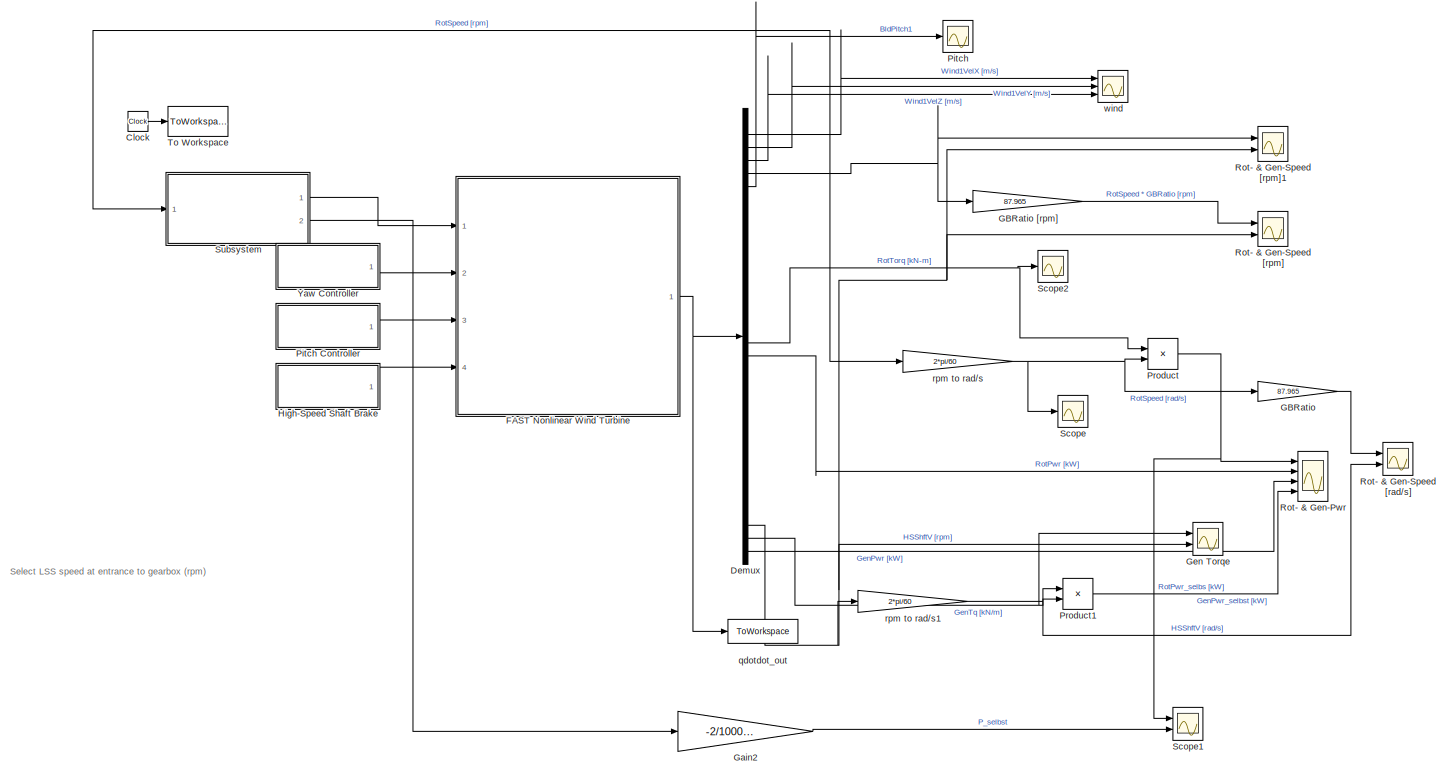
[diagram: root canvas - part 1/1, most of the canvas]
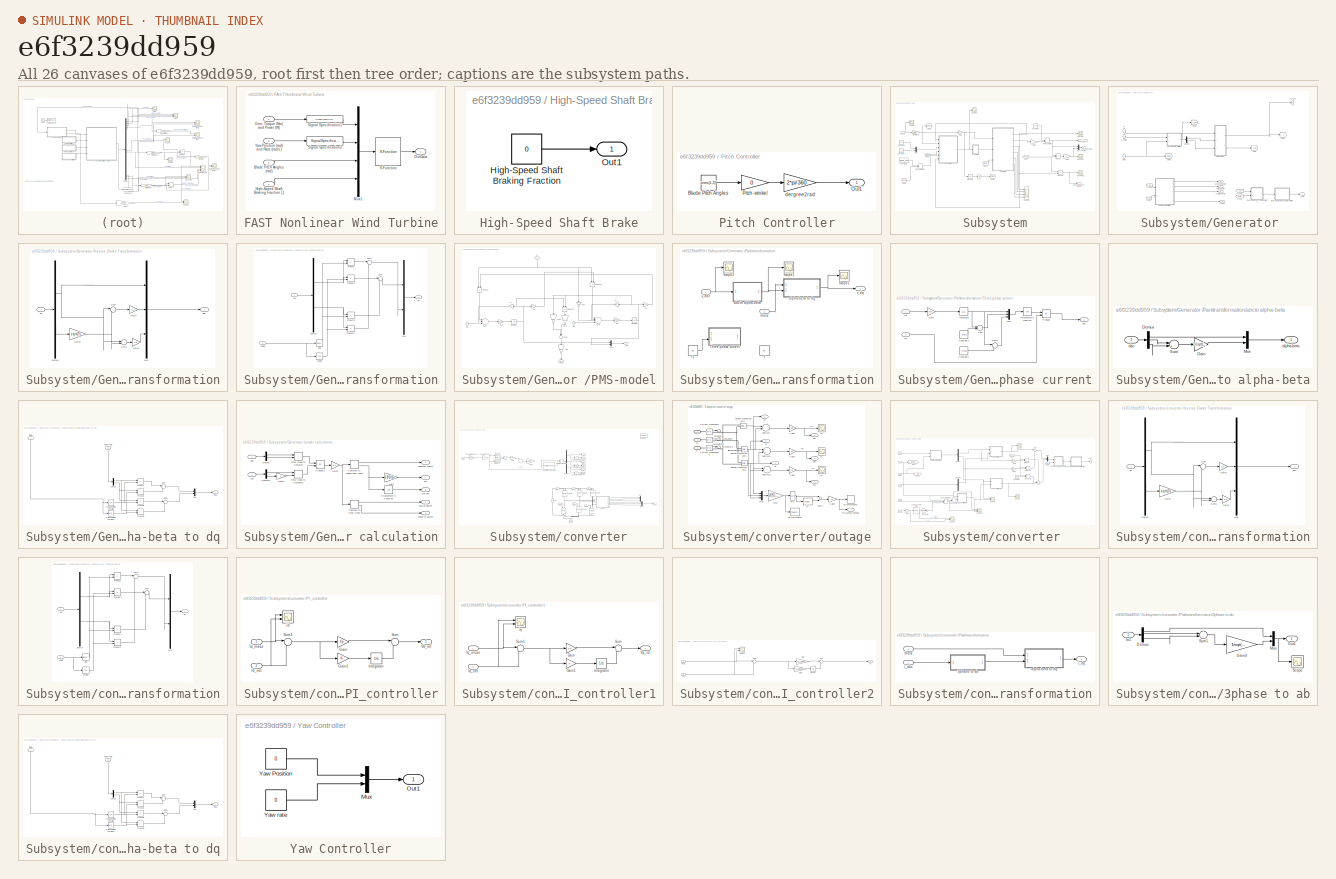
[diagram: thumbnail index - all 26 canvases of the model, root first then tree order]
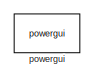
[diagram: Subsystem/converter - part 1/3, top right region]
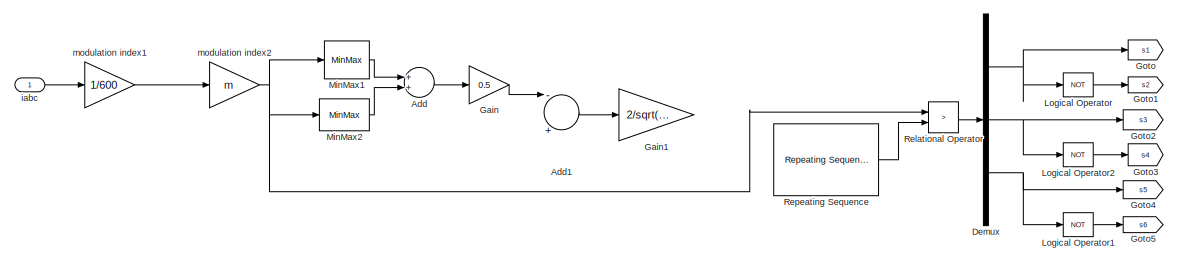
[diagram: Subsystem/converter - part 2/3, middle left region]
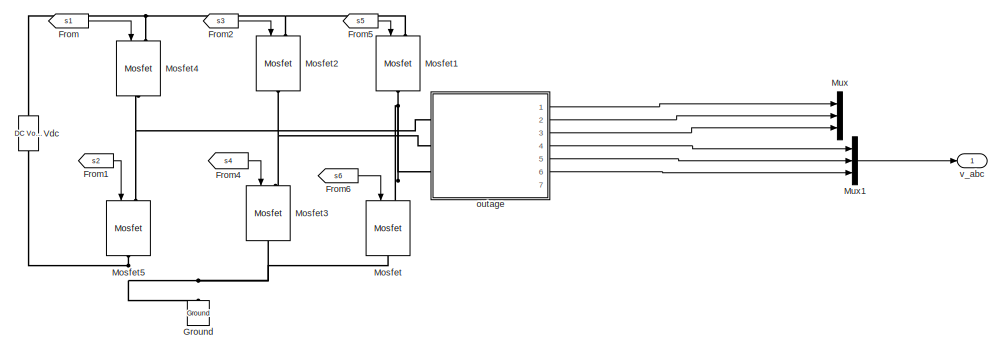
[diagram: Subsystem/converter - part 3/3, bottom right region]
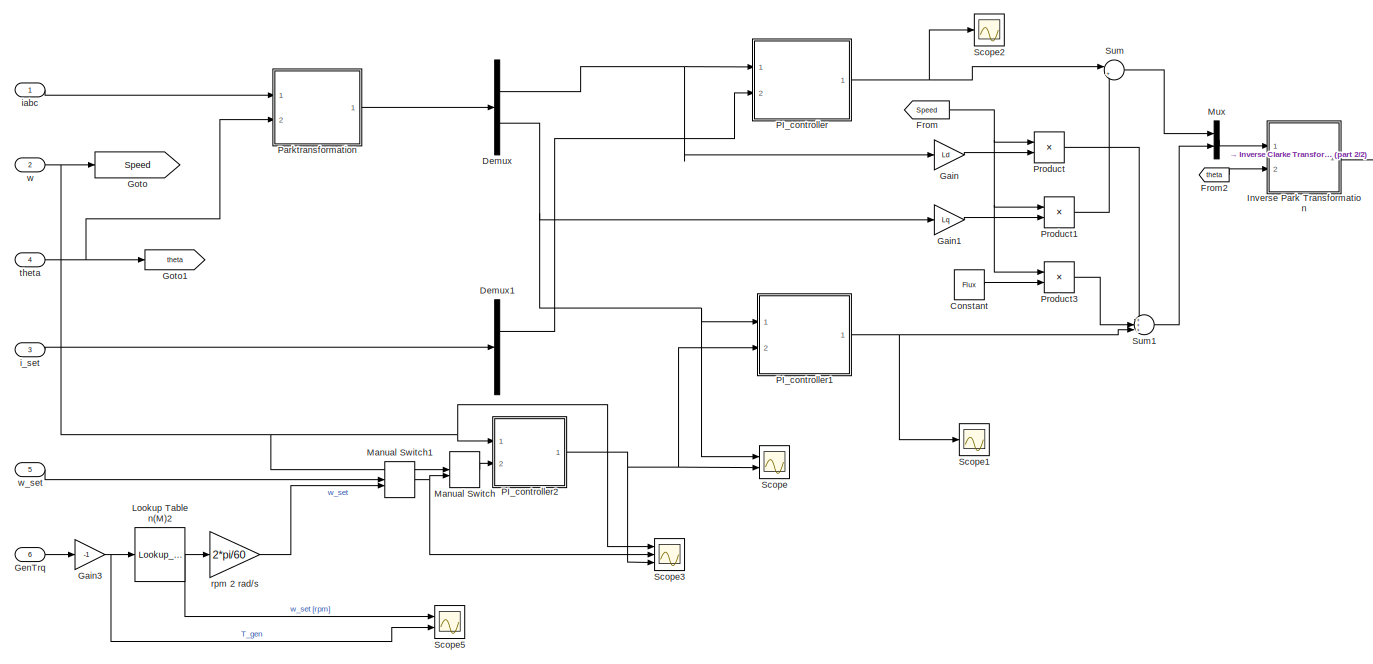
[diagram: Subsystem/converter  - part 1/2, most of the canvas]
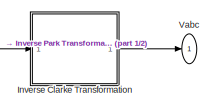
[diagram: Subsystem/converter  - part 2/2, top right region]
MODEL slx_e6f3239dd959
KIND model
CONFIG AbsTol = auto
CONFIG EnableMultiTasking = off
CONFIG FixedStep = 0.0001
CONFIG MaxStep = auto
CONFIG MinStep = auto
CONFIG RelTol = 1e-3
CONFIG SampleTimeConstraint = Unconstrained
CONFIG Solver = ode4
CONFIG SolverName = ode4
CONFIG StartTime = 0.0
CONFIG StopTime = 100
BLOCK [Clock] Clock
BLOCK [Demux] Demux
  DisplayOption = bar
  Outputs = 34
  Ports = [1, 34]
BLOCK [SubSystem] FAST Nonlinear Wind Turbine
  Ports = [4, 1]
  RequestExecContextInheritance = off
  Variant = off
BLOCK [Inport] FAST Nonlinear Wind Turbine/Blade Pitch Angles (rad)
  IconDisplay = Port number
  Port = 3
BLOCK [Inport] FAST Nonlinear Wind Turbine/Gen. Torque (Nm) and Power (W)
  IconDisplay = Port number
BLOCK [Inport] FAST Nonlinear Wind Turbine/High-Speed Shaft Braking Fraction (-)
  IconDisplay = Port number
  Port = 4
BLOCK [Mux] FAST Nonlinear Wind Turbine/Mux1
  DisplayOption = bar
  Ports = [4, 1]
BLOCK [Outport] FAST Nonlinear Wind Turbine/OutData
  IconDisplay = Port number
BLOCK [S-Function] FAST Nonlinear Wind Turbine/S-Function
  EnableBusSupport = off
  FunctionName = FAST_SFunc
  Parameters = FAST_InputFileName, TMax, 0
  Ports = [1, 1]
  SFcnIsStateOwnerBlock = off
  SFunctionDeploymentMode = off
BLOCK [SignalSpecification] FAST Nonlinear Wind Turbine/Signal Specification1
  Dimensions = 2
  OutDataTypeStr = double
  SignalType = real
BLOCK [SignalSpecification] FAST Nonlinear Wind Turbine/Signal Specification2
  Dimensions = 2
  OutDataTypeStr = double
  SignalType = real
BLOCK [Inport] FAST Nonlinear Wind Turbine/Yaw Position (rad) and Rate (rad//s)
  IconDisplay = Port number
  Port = 2
BLOCK [Gain] GBRatio
  Gain = 87.965
  OutDataTypeStr = Inherit: Inherit via internal rule
  ParamDataTypeStr = Inherit: Inherit via internal rule
  SaturateOnIntegerOverflow = off
BLOCK [Gain] GBRatio [rpm]
  Gain = 87.965
  OutDataTypeStr = Inherit: Inherit via internal rule
  ParamDataTypeStr = Inherit: Inherit via internal rule
  SaturateOnIntegerOverflow = off
BLOCK [Gain] Gain2
  Gain = -2/100000
  OutDataTypeStr = Inherit: Inherit via internal rule
  ParamDataTypeStr = Inherit: Inherit via internal rule
  SaturateOnIntegerOverflow = off
BLOCK [Scope] Gen Torqe
  NumInputPorts = 2
  Ports = [2]
  ScopeSpecificationString = Simulink.scopes.TimeScopeBlockCfg('CurrentConfiguration', extmgr.ConfigurationSet(extmgr.Configuration('Core','General UI',true),extmgr.Configuration('Core','Source UI',true),extmgr.Configuration('Sources','WiredSimulink',true,'DataLoggingVariableName','ScopeData1'),extmgr.Configuration('Visuals','Time Domain',true,'SerializedDisplays',{struct('MinYLimReal','175.29635','MaxYLimReal','1290.81856','...<+2465ch>
BLOCK [SubSystem] High-Speed Shaft Brake
  Ports = [0, 1]
  RequestExecContextInheritance = off
  Variant = off
BLOCK [Constant] High-Speed Shaft Brake/High-Speed Shaft Braking Fraction
  Value = 0
BLOCK [Outport] High-Speed Shaft Brake/Out1
  IconDisplay = Port number
BLOCK [Scope] Pitch
  NumInputPorts = 1
  Ports = [1]
  ScopeSpecificationString = Simulink.scopes.TimeScopeBlockCfg('CurrentConfiguration', extmgr.ConfigurationSet(extmgr.Configuration('Core','General UI',true),extmgr.Configuration('Core','Source UI',true),extmgr.Configuration('Sources','WiredSimulink',true,'DataLoggingVariableName','ScopeData2'),extmgr.Configuration('Visuals','Time Domain',true,'SerializedDisplays',{struct('MinYLimReal','-0.06791','MaxYLimReal','11.59004','YLa...<+1787ch>
BLOCK [SubSystem] Pitch Controller
  Ports = [0, 1]
  RequestExecContextInheritance = off
  Variant = off
BLOCK [Constant] Pitch Controller/Blade Pitch Angles
  Value = ones(1,3)'
BLOCK [Outport] Pitch Controller/Out1
  IconDisplay = Port number
BLOCK [Gain] Pitch Controller/Pitch-winkel
  Gain = 0
  OutDataTypeStr = Inherit: Inherit via internal rule
  ParamDataTypeStr = Inherit: Inherit via internal rule
  SaturateOnIntegerOverflow = off
BLOCK [Gain] Pitch Controller/dergree2rad
  Gain = 2*pi/360
  OutDataTypeStr = Inherit: Inherit via internal rule
  ParamDataTypeStr = Inherit: Inherit via internal rule
  SaturateOnIntegerOverflow = off
BLOCK [Product] Product
  InputSameDT = off
  OutDataTypeStr = Inherit: Inherit via internal rule
  Ports = [2, 1]
  RndMeth = Floor
  SaturateOnIntegerOverflow = off
BLOCK [Product] Product1
  InputSameDT = off
  OutDataTypeStr = Inherit: Inherit via internal rule
  Ports = [2, 1]
  RndMeth = Floor
  SaturateOnIntegerOverflow = off
BLOCK [Scope] Rot- & Gen-Pwr
  NumInputPorts = 4
  Ports = [4]
  ScopeSpecificationString = Simulink.scopes.TimeScopeBlockCfg('CurrentConfiguration', extmgr.ConfigurationSet(extmgr.Configuration('Core','General UI',true),extmgr.Configuration('Core','Source UI',true),extmgr.Configuration('Sources','WiredSimulink',true,'DataLoggingVariableName','ScopeData1'),extmgr.Configuration('Visuals','Time Domain',true,'SerializedDisplays',{struct('MinYLimReal','-11998.78751','MaxYLimReal','12263.4527...<+1913ch>
BLOCK [Scope] Rot- & Gen-Speed [rad//s]
  NumInputPorts = 2
  Ports = [2]
  ScopeSpecificationString = Simulink.scopes.TimeScopeBlockCfg('CurrentConfiguration', extmgr.ConfigurationSet(extmgr.Configuration('Core','General UI',true),extmgr.Configuration('Core','Source UI',true),extmgr.Configuration('Sources','WiredSimulink',true,'DataLoggingVariableName','ScopeData1'),extmgr.Configuration('Visuals','Time Domain',true,'SerializedDisplays',{struct('MinYLimReal','176.71018','MaxYLimReal','211.07262','Y...<+1472ch>
BLOCK [Scope] Rot- & Gen-Speed [rpm]
  NumInputPorts = 2
  Ports = [2]
  ScopeSpecificationString = Simulink.scopes.TimeScopeBlockCfg('CurrentConfiguration', extmgr.ConfigurationSet(extmgr.Configuration('Core','General UI',true),extmgr.Configuration('Core','Source UI',true),extmgr.Configuration('Sources','WiredSimulink',true,'DataLoggingVariableName','ScopeData1'),extmgr.Configuration('Visuals','Time Domain',true,'SerializedDisplays',{struct('MinYLimReal','1687.45789','MaxYLimReal','2015.59509',...<+1545ch>
BLOCK [Scope] Rot- & Gen-Speed [rpm]1
  NumInputPorts = 2
  Ports = [2]
  ScopeSpecificationString = Simulink.scopes.TimeScopeBlockCfg('CurrentConfiguration', extmgr.ConfigurationSet(extmgr.Configuration('Core','General UI',true),extmgr.Configuration('Core','Source UI',true),extmgr.Configuration('Sources','WiredSimulink',true,'DataLoggingVariableName','ScopeData3'),extmgr.Configuration('Visuals','Time Domain',true,'SerializedDisplays',{struct('MinYLimReal','-204.38964','MaxYLimReal','2034.73429',...<+1854ch>
BLOCK [Scope] Scope
  NumInputPorts = 1
  Ports = [1]
  ScopeSpecificationString = Simulink.scopes.TimeScopeBlockCfg('CurrentConfiguration', extmgr.ConfigurationSet(extmgr.Configuration('Core','General UI',true),extmgr.Configuration('Core','Source UI',true),extmgr.Configuration('Sources','WiredSimulink',true,'DataLoggingVariableName','ScopeData1'),extmgr.Configuration('Visuals','Time Domain',true,'SerializedDisplays',{struct('MinYLimReal','2.02033','MaxYLimReal','2.39822','YLabe...<+1729ch>
BLOCK [Scope] Scope1
  NumInputPorts = 2
  Ports = [2]
  ScopeSpecificationString = Simulink.scopes.TimeScopeBlockCfg('CurrentConfiguration', extmgr.ConfigurationSet(extmgr.Configuration('Core','General UI',true),extmgr.Configuration('Core','Source UI',true),extmgr.Configuration('Sources','WiredSimulink',true,'DataLoggingVariableName','ScopeData5'),extmgr.Configuration('Visuals','Time Domain',true,'SerializedDisplays',{struct('MinYLimReal','-337.22726','MaxYLimReal','3035.04531',...<+1790ch>
BLOCK [Scope] Scope2
  NumInputPorts = 1
  Ports = [1]
  ScopeSpecificationString = Simulink.scopes.TimeScopeBlockCfg('CurrentConfiguration', extmgr.ConfigurationSet(extmgr.Configuration('Core','General UI',true),extmgr.Configuration('Core','Source UI',true),extmgr.Configuration('Sources','WiredSimulink',true,'DataLoggingVariableName','ScopeData2'),extmgr.Configuration('Visuals','Time Domain',true,'SerializedDisplays',{struct('MinYLimReal','-412498.87918','MaxYLimReal','45986.162...<+1784ch>
BLOCK [SubSystem] Subsystem
  Ports = [1, 2]
  RequestExecContextInheritance = off
  Variant = off
BLOCK [Constant] Subsystem/Constant
  Value = 8377
  VectorParams1D = off
BLOCK [Constant] Subsystem/Constant1
  Value = Speed_set
BLOCK [Constant] Subsystem/Constant3
  Value = Id_set
BLOCK [Constant] Subsystem/Constant4
  Value = Iq_set
BLOCK [From] Subsystem/From
  GotoTag = Speed
BLOCK [From] Subsystem/From1
  GotoTag = theta
BLOCK [From] Subsystem/From2
  GotoTag = theta
BLOCK [Gain] Subsystem/Gain
  Gain = p
  OutDataTypeStr = Inherit: Inherit via internal rule
  ParamDataTypeStr = Inherit: Inherit via internal rule
  SaturateOnIntegerOverflow = off
BLOCK [Gain] Subsystem/Gain1
  Gain = -1
  OutDataTypeStr = Inherit: Inherit via internal rule
  ParamDataTypeStr = Inherit: Inherit via internal rule
  SaturateOnIntegerOverflow = off
BLOCK [Gain] Subsystem/Gain2
  OutDataTypeStr = Inherit: Inherit via internal rule
  ParamDataTypeStr = Inherit: Inherit via internal rule
  SaturateOnIntegerOverflow = off
BLOCK [Outport] Subsystem/Gen Torque, Gen Power
  IconDisplay = Port number
BLOCK [Outport] Subsystem/Gen Torque, Gen Power1
  IconDisplay = Port number
  Port = 2
BLOCK [Scope] Subsystem/GenPowr
  NumInputPorts = 1
  Ports = [1]
  ScopeSpecificationString = Simulink.scopes.TimeScopeBlockCfg('CurrentConfiguration', extmgr.ConfigurationSet(extmgr.Configuration('Core','General UI',true),extmgr.Configuration('Core','Source UI',true),extmgr.Configuration('Sources','WiredSimulink',true,'DataLoggingVariableName','ScopeData1'),extmgr.Configuration('Visuals','Time Domain',true,'SerializedDisplays',{struct('MinYLimReal','1699746.92035','MaxYLimReal','1950506.4...<+1826ch>
BLOCK [Scope] Subsystem/GenPowr1
  NumInputPorts = 1
  Ports = [1]
  ScopeSpecificationString = Simulink.scopes.TimeScopeBlockCfg('CurrentConfiguration', extmgr.ConfigurationSet(extmgr.Configuration('Core','General UI',true),extmgr.Configuration('Core','Source UI',true),extmgr.Configuration('Sources','WiredSimulink',true,'DataLoggingVariableName','ScopeData4'),extmgr.Configuration('Visuals','Time Domain',true,'SerializedDisplays',{struct('MinYLimReal','-17221.29065','MaxYLimReal','2142.33384...<+1749ch>
BLOCK [Scope] Subsystem/GenTorq
  NumInputPorts = 1
  Ports = [1]
  ScopeSpecificationString = Simulink.scopes.TimeScopeBlockCfg('CurrentConfiguration', extmgr.ConfigurationSet(extmgr.Configuration('Core','General UI',true),extmgr.Configuration('Core','Source UI',true),extmgr.Configuration('Sources','WiredSimulink',true,'DataLoggingVariableName','ScopeData2','DataLoggingSaveFormat','Array','DataLoggingDecimation','1'),extmgr.Configuration('Visuals','Time Domain',true,'SerializedDisplays',{s...<+1847ch>
BLOCK [SubSystem] Subsystem/Generator 
  Ports = [3, 6]
  RequestExecContextInheritance = off
  Variant = off
BLOCK [Demux] Subsystem/Generator /Demux
  DisplayOption = bar
  Outputs = 2
  Ports = [1, 2]
BLOCK [From] Subsystem/Generator /From1
  GotoTag = I_dq
BLOCK [From] Subsystem/Generator /From2
  GotoTag = theta
BLOCK [From] Subsystem/Generator /From6
  GotoTag = V_dq
BLOCK [From] Subsystem/Generator /From7
  GotoTag = I_dq
BLOCK [Goto] Subsystem/Generator /Goto
  GotoTag = I_dq
BLOCK [Goto] Subsystem/Generator /Goto1
  GotoTag = T
BLOCK [Goto] Subsystem/Generator /Goto2
  GotoTag = V_dq
BLOCK [Goto] Subsystem/Generator /Goto3
  GotoTag = theta
BLOCK [Outport] Subsystem/Generator /I_stator 
  IconDisplay = Port number
BLOCK [SubSystem] Subsystem/Generator /Inverse Clarke Transformation
  Ports = [1, 1]
  RequestExecContextInheritance = off
  Variant = off
BLOCK [Demux] Subsystem/Generator /Inverse Clarke Transformation/Demux
  DisplayOption = bar
  Outputs = 2
  Ports = [1, 2]
BLOCK [Gain] Subsystem/Generator /Inverse Clarke Transformation/Gain1
  Gain = 1/2
  OutDataTypeStr = Inherit: Inherit via internal rule
  ParamDataTypeStr = Inherit: Inherit via internal rule
  SaturateOnIntegerOverflow = off
BLOCK [Gain] Subsystem/Generator /Inverse Clarke Transformation/Gain2
  Gain = sqrt(3)
  OutDataTypeStr = Inherit: Inherit via internal rule
  ParamDataTypeStr = Inherit: Inherit via internal rule
  SaturateOnIntegerOverflow = off
BLOCK [Gain] Subsystem/Generator /Inverse Clarke Transformation/Gain4
  Gain = 1/2
  OutDataTypeStr = Inherit: Inherit via internal rule
  ParamDataTypeStr = Inherit: Inherit via internal rule
  SaturateOnIntegerOverflow = off
BLOCK [Mux] Subsystem/Generator /Inverse Clarke Transformation/Mux
  DisplayOption = bar
  Inputs = 3
  Ports = [3, 1]
BLOCK [Sum] Subsystem/Generator /Inverse Clarke Transformation/Sum
  IconShape = round
  InputSameDT = off
  Inputs = |-+
  OutDataTypeStr = Inherit: Inherit via internal rule
  Ports = [2, 1]
  SaturateOnIntegerOverflow = off
BLOCK [Sum] Subsystem/Generator /Inverse Clarke Transformation/Sum1
  IconShape = round
  InputSameDT = off
  Inputs = |--
  OutDataTypeStr = Inherit: Inherit via internal rule
  Ports = [2, 1]
  SaturateOnIntegerOverflow = off
BLOCK [Inport] Subsystem/Generator /Inverse Clarke Transformation/ab
  IconDisplay = Port number
BLOCK [Outport] Subsystem/Generator /Inverse Clarke Transformation/abc
  IconDisplay = Port number
BLOCK [SubSystem] Subsystem/Generator /Inverse Park Transformation
  Ports = [2, 1]
  RequestExecContextInheritance = off
  Variant = off
BLOCK [Demux] Subsystem/Generator /Inverse Park Transformation/Demux
  DisplayOption = bar
  Outputs = 2
  Ports = [1, 2]
BLOCK [Mux] Subsystem/Generator /Inverse Park Transformation/Mux
  DisplayOption = bar
  Inputs = 2
  Ports = [2, 1]
BLOCK [Product] Subsystem/Generator /Inverse Park Transformation/Product
  InputSameDT = off
  OutDataTypeStr = Inherit: Inherit via internal rule
  Ports = [2, 1]
  SaturateOnIntegerOverflow = off
BLOCK [Product] Subsystem/Generator /Inverse Park Transformation/Product1
  InputSameDT = off
  OutDataTypeStr = Inherit: Inherit via internal rule
  Ports = [2, 1]
  SaturateOnIntegerOverflow = off
BLOCK [Product] Subsystem/Generator /Inverse Park Transformation/Product2
  InputSameDT = off
  OutDataTypeStr = Inherit: Inherit via internal rule
  Ports = [2, 1]
  SaturateOnIntegerOverflow = off
BLOCK [Product] Subsystem/Generator /Inverse Park Transformation/Product3
  InputSameDT = off
  OutDataTypeStr = Inherit: Inherit via internal rule
  Ports = [2, 1]
  SaturateOnIntegerOverflow = off
BLOCK [Sum] Subsystem/Generator /Inverse Park Transformation/Sum
  IconShape = round
  InputSameDT = off
  Inputs = |+-
  OutDataTypeStr = Inherit: Inherit via internal rule
  Ports = [2, 1]
  SaturateOnIntegerOverflow = off
BLOCK [Sum] Subsystem/Generator /Inverse Park Transformation/Sum1
  IconShape = round
  InputSameDT = off
  Inputs = |++
  OutDataTypeStr = Inherit: Inherit via internal rule
  Ports = [2, 1]
  SaturateOnIntegerOverflow = off
BLOCK [Outport] Subsystem/Generator /Inverse Park Transformation/ab
  IconDisplay = Port number
BLOCK [Inport] Subsystem/Generator /Inverse Park Transformation/angle
  IconDisplay = Port number
  Port = 2
BLOCK [Trigonometry] Subsystem/Generator /Inverse Park Transformation/cosine
  Operator = cos
  Ports = [1, 1]
BLOCK [Inport] Subsystem/Generator /Inverse Park Transformation/dq
  IconDisplay = Port number
BLOCK [Trigonometry] Subsystem/Generator /Inverse Park Transformation/sine
  Ports = [1, 1]
BLOCK [SubSystem] Subsystem/Generator /PMS-model
  Ports = [3, 2]
  RequestExecContextInheritance = off
  Variant = off
BLOCK [Gain] Subsystem/Generator /PMS-model/1//Ld
  Gain = 1/Ld
  OutDataTypeStr = Inherit: Inherit via internal rule
  ParamDataTypeStr = Inherit: Inherit via internal rule
  SaturateOnIntegerOverflow = off
BLOCK [Gain] Subsystem/Generator /PMS-model/1//Lq
  Gain = 1/Lq
  OutDataTypeStr = Inherit: Inherit via internal rule
  ParamDataTypeStr = Inherit: Inherit via internal rule
  SaturateOnIntegerOverflow = off
BLOCK [Gain] Subsystem/Generator /PMS-model/3//2 p
  Gain = 3/2*p
  OutDataTypeStr = Inherit: Inherit via internal rule
  ParamDataTypeStr = Inherit: Inherit via internal rule
  SaturateOnIntegerOverflow = off
BLOCK [Gain] Subsystem/Generator /PMS-model/Flux 
  Gain = Flux
  OutDataTypeStr = Inherit: Inherit via internal rule
  ParamDataTypeStr = Inherit: Inherit via internal rule
  SaturateOnIntegerOverflow = off
BLOCK [Gain] Subsystem/Generator /PMS-model/Flux 1
  Gain = Flux
  OutDataTypeStr = Inherit: Inherit via internal rule
  ParamDataTypeStr = Inherit: Inherit via internal rule
  SaturateOnIntegerOverflow = off
BLOCK [Outport] Subsystem/Generator /PMS-model/I_dq
  IconDisplay = Port number
  Port = 2
BLOCK [Integrator] Subsystem/Generator /PMS-model/Integrator
  Ports = [1, 1]
BLOCK [Integrator] Subsystem/Generator /PMS-model/Integrator1
  Ports = [1, 1]
BLOCK [Gain] Subsystem/Generator /PMS-model/Ld
  Gain = Ld
  OutDataTypeStr = Inherit: Inherit via internal rule
  ParamDataTypeStr = Inherit: Inherit via internal rule
  SaturateOnIntegerOverflow = off
BLOCK [Gain] Subsystem/Generator /PMS-model/Ld-Lq
  Gain = Ld-Lq
  OutDataTypeStr = Inherit: Inherit via internal rule
  ParamDataTypeStr = Inherit: Inherit via internal rule
  SaturateOnIntegerOverflow = off
BLOCK [Gain] Subsystem/Generator /PMS-model/Lq
  Gain = Lq
  OutDataTypeStr = Inherit: Inherit via internal rule
  ParamDataTypeStr = Inherit: Inherit via internal rule
  SaturateOnIntegerOverflow = off
BLOCK [Mux] Subsystem/Generator /PMS-model/Mux
  DisplayOption = bar
  Inputs = 2
  Ports = [2, 1]
BLOCK [Product] Subsystem/Generator /PMS-model/Product
  InputSameDT = off
  OutDataTypeStr = Inherit: Inherit via internal rule
  Ports = [2, 1]
  RndMeth = Floor
  SaturateOnIntegerOverflow = off
BLOCK [Product] Subsystem/Generator /PMS-model/Product1
  InputSameDT = off
  OutDataTypeStr = Inherit: Inherit via internal rule
  Ports = [2, 1]
  RndMeth = Floor
  SaturateOnIntegerOverflow = off
BLOCK [Product] Subsystem/Generator /PMS-model/Product2
  InputSameDT = off
  OutDataTypeStr = Inherit: Inherit via internal rule
  Ports = [2, 1]
  RndMeth = Floor
  SaturateOnIntegerOverflow = off
BLOCK [Gain] Subsystem/Generator /PMS-model/R
  Gain = Rs
  OutDataTypeStr = Inherit: Inherit via internal rule
  ParamDataTypeStr = Inherit: Inherit via internal rule
  SaturateOnIntegerOverflow = off
BLOCK [Gain] Subsystem/Generator /PMS-model/R1
  Gain = Rs
  OutDataTypeStr = Inherit: Inherit via internal rule
  ParamDataTypeStr = Inherit: Inherit via internal rule
  SaturateOnIntegerOverflow = off
BLOCK [Sum] Subsystem/Generator /PMS-model/Sum
  InputSameDT = off
  Inputs = |+-+
  OutDataTypeStr = Inherit: Inherit via internal rule
  Ports = [3, 1]
  SaturateOnIntegerOverflow = off
BLOCK [Sum] Subsystem/Generator /PMS-model/Sum1
  InputSameDT = off
  Inputs = |---+
  OutDataTypeStr = Inherit: Inherit via internal rule
  Ports = [4, 1]
  SaturateOnIntegerOverflow = off
BLOCK [Sum] Subsystem/Generator /PMS-model/Sum3
  IconShape = round
  InputSameDT = off
  Inputs = |++
  OutDataTypeStr = Inherit: Inherit via internal rule
  Ports = [2, 1]
  SaturateOnIntegerOverflow = off
BLOCK [Outport] Subsystem/Generator /PMS-model/Torque
  IconDisplay = Port number
BLOCK [Inport] Subsystem/Generator /PMS-model/Vd
  IconDisplay = Port number
  Port = 2
BLOCK [Inport] Subsystem/Generator /PMS-model/Vq
  IconDisplay = Port number
  Port = 3
BLOCK [Inport] Subsystem/Generator /PMS-model/w
  IconDisplay = Port number
BLOCK [SubSystem] Subsystem/Generator /Parktransformation
  Ports = [2, 1]
  RequestExecContextInheritance = off
  Variant = off
BLOCK [Scope] Subsystem/Generator /Parktransformation/Scope1
  NumInputPorts = 1
  Ports = [1]
  ScopeSpecificationString = Simulink.scopes.TimeScopeBlockCfg('CurrentConfiguration', extmgr.ConfigurationSet(extmgr.Configuration('Core','General UI',true),extmgr.Configuration('Core','Source UI',true),extmgr.Configuration('Sources','WiredSimulink',true,'DataLoggingSaveFormat','Array','DataLoggingDecimation','1','DataLoggingDecimateData',true),extmgr.Configuration('Visuals','Time Domain',true,'SerializedDisplays',{struct('M...<+1724ch>
BLOCK [Scope] Subsystem/Generator /Parktransformation/Scope2
  NumInputPorts = 1
  Ports = [1]
  ScopeSpecificationString = Simulink.scopes.TimeScopeBlockCfg('CurrentConfiguration', extmgr.ConfigurationSet(extmgr.Configuration('Core','General UI',true),extmgr.Configuration('Core','Source UI',true),extmgr.Configuration('Sources','WiredSimulink',true,'DataLoggingSaveFormat','Array','DataLoggingDecimation','1','DataLoggingDecimateData',true,'DataLoggingVariableName','ScopeData2'),extmgr.Configuration('Visuals','Time Domai...<+1761ch>
BLOCK [Scope] Subsystem/Generator /Parktransformation/Scope3
  NumInputPorts = 1
  Ports = [1]
  ScopeSpecificationString = Simulink.scopes.TimeScopeBlockCfg('CurrentConfiguration', extmgr.ConfigurationSet(extmgr.Configuration('Core','General UI',true),extmgr.Configuration('Core','Source UI',true),extmgr.Configuration('Sources','WiredSimulink',true,'DataLoggingSaveFormat','Array','DataLoggingDecimation','1','DataLoggingDecimateData',true,'DataLoggingVariableName','ScopeData1'),extmgr.Configuration('Visuals','Time Domai...<+1753ch>
BLOCK [SubSystem] Subsystem/Generator /Parktransformation/Three-phase current
  Ports = [2, 1]
  RequestExecContextInheritance = off
  Variant = off
BLOCK [Constant] Subsystem/Generator /Parktransformation/Three-phase current/Constant3
  Value = 2*pi/3
BLOCK [Constant] Subsystem/Generator /Parktransformation/Three-phase current/Constant4
  Value = -2*pi/3
BLOCK [Gain] Subsystem/Generator /Parktransformation/Three-phase current/Gain
  Gain = 2*pi
  OutDataTypeStr = Inherit: Inherit via internal rule
  ParamDataTypeStr = Inherit: Inherit via internal rule
  SaturateOnIntegerOverflow = off
BLOCK [Inport] Subsystem/Generator /Parktransformation/Three-phase current/In1
  IconDisplay = Port number
BLOCK [Inport] Subsystem/Generator /Parktransformation/Three-phase current/In2
  IconDisplay = Port number
  Port = 2
BLOCK [Integrator] Subsystem/Generator /Parktransformation/Three-phase current/Integrator
  Ports = [1, 1]
BLOCK [Mux] Subsystem/Generator /Parktransformation/Three-phase current/Mux
  DisplayOption = bar
  Inputs = 3
  Ports = [3, 1]
BLOCK [Product] Subsystem/Generator /Parktransformation/Three-phase current/Product
  InputSameDT = off
  OutDataTypeStr = Inherit: Inherit via internal rule
  Ports = [2, 1]
  RndMeth = Floor
  SaturateOnIntegerOverflow = off
BLOCK [Sum] Subsystem/Generator /Parktransformation/Three-phase current/Sum
  IconShape = round
  InputSameDT = off
  Inputs = |++
  OutDataTypeStr = Inherit: Inherit via internal rule
  Ports = [2, 1]
  SaturateOnIntegerOverflow = off
BLOCK [Sum] Subsystem/Generator /Parktransformation/Three-phase current/Sum1
  IconShape = round
  InputSameDT = off
  Inputs = |++
  OutDataTypeStr = Inherit: Inherit via internal rule
  Ports = [2, 1]
  SaturateOnIntegerOverflow = off
BLOCK [Trigonometry] Subsystem/Generator /Parktransformation/Three-phase current/Trigonometric Function
  Operator = cos
  Ports = [1, 1]
BLOCK [Outport] Subsystem/Generator /Parktransformation/Three-phase current/abc 
  IconDisplay = Port number
BLOCK [SubSystem] Subsystem/Generator /Parktransformation/abc to alpha-beta
  Ports = [1, 1]
  RequestExecContextInheritance = off
  Variant = off
BLOCK [Demux] Subsystem/Generator /Parktransformation/abc to alpha-beta/Demux
  DisplayOption = bar
  Outputs = 3
  Ports = [1, 3]
BLOCK [Gain] Subsystem/Generator /Parktransformation/abc to alpha-beta/Gain
  Gain = 1/sqrt(3)
  OutDataTypeStr = Inherit: Inherit via internal rule
  ParamDataTypeStr = Inherit: Inherit via internal rule
  SaturateOnIntegerOverflow = off
BLOCK [Mux] Subsystem/Generator /Parktransformation/abc to alpha-beta/Mux
  DisplayOption = bar
  Inputs = 2
  Ports = [2, 1]
BLOCK [Sum] Subsystem/Generator /Parktransformation/abc to alpha-beta/Sum
  IconShape = round
  InputSameDT = off
  Inputs = |+-
  OutDataTypeStr = Inherit: Inherit via internal rule
  Ports = [2, 1]
  SaturateOnIntegerOverflow = off
BLOCK [Inport] Subsystem/Generator /Parktransformation/abc to alpha-beta/abc
  IconDisplay = Port number
BLOCK [Outport] Subsystem/Generator /Parktransformation/abc to alpha-beta/alpha-beta 
  IconDisplay = Port number
BLOCK [SubSystem] Subsystem/Generator /Parktransformation/alpha-beta to dq
  Ports = [2, 1]
  RequestExecContextInheritance = off
  Variant = off
BLOCK [Demux] Subsystem/Generator /Parktransformation/alpha-beta to dq/Demux
  DisplayOption = bar
  Outputs = 2
  Ports = [1, 2]
BLOCK [Mux] Subsystem/Generator /Parktransformation/alpha-beta to dq/Mux
  DisplayOption = bar
  Inputs = 2
  Ports = [2, 1]
BLOCK [Outport] Subsystem/Generator /Parktransformation/alpha-beta to dq/Out1
  IconDisplay = Port number
BLOCK [Product] Subsystem/Generator /Parktransformation/alpha-beta to dq/Product
  InputSameDT = off
  OutDataTypeStr = Inherit: Inherit via internal rule
  Ports = [2, 1]
  RndMeth = Floor
  SaturateOnIntegerOverflow = off
BLOCK [Product] Subsystem/Generator /Parktransformation/alpha-beta to dq/Product1
  InputSameDT = off
  OutDataTypeStr = Inherit: Inherit via internal rule
  Ports = [2, 1]
  RndMeth = Floor
  SaturateOnIntegerOverflow = off
BLOCK [Product] Subsystem/Generator /Parktransformation/alpha-beta to dq/Product2
  InputSameDT = off
  OutDataTypeStr = Inherit: Inherit via internal rule
  Ports = [2, 1]
  RndMeth = Floor
  SaturateOnIntegerOverflow = off
BLOCK [Product] Subsystem/Generator /Parktransformation/alpha-beta to dq/Product3
  InputSameDT = off
  OutDataTypeStr = Inherit: Inherit via internal rule
  Ports = [2, 1]
  RndMeth = Floor
  SaturateOnIntegerOverflow = off
BLOCK [Sum] Subsystem/Generator /Parktransformation/alpha-beta to dq/Sum
  IconShape = round
  InputSameDT = off
  Inputs = |++
  OutDataTypeStr = Inherit: Inherit via internal rule
  Ports = [2, 1]
  SaturateOnIntegerOverflow = off
BLOCK [Sum] Subsystem/Generator /Parktransformation/alpha-beta to dq/Sum1
  IconShape = round
  InputSameDT = off
  Inputs = |+-
  OutDataTypeStr = Inherit: Inherit via internal rule
  Ports = [2, 1]
  SaturateOnIntegerOverflow = off
BLOCK [Trigonometry] Subsystem/Generator /Parktransformation/alpha-beta to dq/Trigonometric Function
  Operator = cos
  Ports = [1, 1]
BLOCK [Trigonometry] Subsystem/Generator /Parktransformation/alpha-beta to dq/Trigonometric Function1
  Ports = [1, 1]
BLOCK [Inport] Subsystem/Generator /Parktransformation/alpha-beta to dq/alpha-beta 
  IconDisplay = Port number
  Port = 2
BLOCK [Inport] Subsystem/Generator /Parktransformation/alpha-beta to dq/theta
  IconDisplay = Port number
BLOCK [Constant] Subsystem/Generator /Parktransformation/f
  Value = 50
BLOCK [Constant] Subsystem/Generator /Parktransformation/f1
  Value = 20
BLOCK [Inport] Subsystem/Generator /Parktransformation/theta
  IconDisplay = Port number
  Port = 2
BLOCK [Inport] Subsystem/Generator /Parktransformation/v_abc
  IconDisplay = Port number
BLOCK [Outport] Subsystem/Generator /Parktransformation/v_dq
  IconDisplay = Port number
BLOCK [Outport] Subsystem/Generator /Torque
  IconDisplay = Port number
  Port = 2
BLOCK [Inport] Subsystem/Generator /V_stator 
  IconDisplay = Port number
  Port = 2
BLOCK [Outport] Subsystem/Generator /active power
  IconDisplay = Port number
  Port = 4
BLOCK [Outport] Subsystem/Generator /apparent power
  IconDisplay = Port number
  Port = 3
BLOCK [Outport] Subsystem/Generator /cosphi
  IconDisplay = Port number
  Port = 6
BLOCK [SubSystem] Subsystem/Generator /power calculation
  Ports = [2, 5]
  RequestExecContextInheritance = off
  Variant = off
BLOCK [ComplexToMagnitudeAngle] Subsystem/Generator /power calculation/Complex to Magnitude-Angle
  Ports = [1, 2]
BLOCK [ComplexToRealImag] Subsystem/Generator /power calculation/Complex to Real-Imag
  Ports = [1, 2]
BLOCK [Demux] Subsystem/Generator /power calculation/Demux
  DisplayOption = bar
  Outputs = 2
  Ports = [1, 2]
BLOCK [Demux] Subsystem/Generator /power calculation/Demux1
  DisplayOption = bar
  Outputs = 2
  Ports = [1, 2]
BLOCK [Gain] Subsystem/Generator /power calculation/Gain
  Gain = 180/pi
  OutDataTypeStr = Inherit: Inherit via internal rule
  ParamDataTypeStr = Inherit: Inherit via internal rule
  SaturateOnIntegerOverflow = off
BLOCK [Gain] Subsystem/Generator /power calculation/Gain1
  Gain = -1
  OutDataTypeStr = Inherit: Inherit via internal rule
  ParamDataTypeStr = Inherit: Inherit via internal rule
  SaturateOnIntegerOverflow = off
BLOCK [Gain] Subsystem/Generator /power calculation/Gain4
  Gain = 3/2
  OutDataTypeStr = Inherit: Inherit via internal rule
  ParamDataTypeStr = Inherit: Inherit via internal rule
  SaturateOnIntegerOverflow = off
BLOCK [Product] Subsystem/Generator /power calculation/Product2
  InputSameDT = off
  OutDataTypeStr = Inherit: Inherit via internal rule
  Ports = [2, 1]
  SaturateOnIntegerOverflow = off
BLOCK [RealImagToComplex] Subsystem/Generator /power calculation/Real-Imag to Complex
  Ports = [2, 1]
BLOCK [RealImagToComplex] Subsystem/Generator /power calculation/Real-Imag to Complex1
  Ports = [2, 1]
BLOCK [Trigonometry] Subsystem/Generator /power calculation/Trigonometric Function
  Operator = cos
  Ports = [1, 1]
BLOCK [Outport] Subsystem/Generator /power calculation/active power
  IconDisplay = Port number
  Port = 2
BLOCK [Outport] Subsystem/Generator /power calculation/apparent power
  IconDisplay = Port number
BLOCK [Outport] Subsystem/Generator /power calculation/cos phi
  IconDisplay = Port number
  Port = 5
BLOCK [Inport] Subsystem/Generator /power calculation/idq
  IconDisplay = Port number
  Port = 2
BLOCK [Outport] Subsystem/Generator /power calculation/phi
  IconDisplay = Port number
  Port = 4
BLOCK [Outport] Subsystem/Generator /power calculation/reactive power
  IconDisplay = Port number
  Port = 3
BLOCK [Inport] Subsystem/Generator /power calculation/vdq
  IconDisplay = Port number
BLOCK [Outport] Subsystem/Generator /reactive power
  IconDisplay = Port number
  Port = 5
BLOCK [Inport] Subsystem/Generator /theta 
  IconDisplay = Port number
  Port = 3
BLOCK [Inport] Subsystem/Generator /w
  IconDisplay = Port number
BLOCK [Goto] Subsystem/Goto
  GotoTag = Speed
BLOCK [Integrator] Subsystem/Integrator3
  Ports = [1, 1]
BLOCK [ManualSwitch] Subsystem/Manual Switch
  CurrentSetting = 0
BLOCK [ManualSwitch] Subsystem/Manual Switch1
BLOCK [Mux] Subsystem/Mux
  DisplayOption = bar
  Inputs = 2
  Ports = [2, 1]
BLOCK [Mux] Subsystem/Mux1
  DisplayOption = bar
  Inputs = 2
  Ports = [2, 1]
BLOCK [Gain] Subsystem/P3
  Gain = p
  OutDataTypeStr = Inherit: Inherit via internal rule
  ParamDataTypeStr = Inherit: Inherit via internal rule
  SaturateOnIntegerOverflow = off
BLOCK [Product] Subsystem/Product
  InputSameDT = off
  OutDataTypeStr = Inherit: Inherit via internal rule
  Ports = [2, 1]
  RndMeth = Floor
  SaturateOnIntegerOverflow = off
BLOCK [Product] Subsystem/Product1
  InputSameDT = off
  OutDataTypeStr = Inherit: Inherit via internal rule
  Ports = [2, 1]
  RndMeth = Floor
  SaturateOnIntegerOverflow = off
BLOCK [Reference] Subsystem/Ramp  REF=simulink/Sources/Ramp
  Ports = [0, 1]
  SourceBlock = simulink/Sources/Ramp
  SourceProductBaseCode = SL
  SourceProductName = Simulink
  SourceType = Ramp
BLOCK [Scope] Subsystem/Scope
  NumInputPorts = 1
  Ports = [1]
  ScopeSpecificationString = Simulink.scopes.TimeScopeBlockCfg('CurrentConfiguration', extmgr.ConfigurationSet(extmgr.Configuration('Core','General UI',true),extmgr.Configuration('Core','Source UI',true),extmgr.Configuration('Sources','WiredSimulink',true,'DataLoggingVariableName','ScopeData2'),extmgr.Configuration('Visuals','Time Domain',true,'SerializedDisplays',{struct('MinYLimReal','19.38878','MaxYLimReal','20.72853','YLa...<+1423ch>
BLOCK [Scope] Subsystem/Scope1
  NumInputPorts = 1
  Ports = [1]
  ScopeSpecificationString = Simulink.scopes.TimeScopeBlockCfg('CurrentConfiguration', extmgr.ConfigurationSet(extmgr.Configuration('Core','General UI',true),extmgr.Configuration('Core','Source UI',true),extmgr.Configuration('Sources','WiredSimulink',true,'DataLoggingVariableName','ScopeData4'),extmgr.Configuration('Visuals','Time Domain',true,'SerializedDisplays',{struct('MinYLimReal','-699.84305','MaxYLimReal','972.47316','...<+1512ch>
BLOCK [Scope] Subsystem/Scope2
  NumInputPorts = 4
  Ports = [4]
  ScopeSpecificationString = Simulink.scopes.TimeScopeBlockCfg('CurrentConfiguration', extmgr.ConfigurationSet(extmgr.Configuration('Core','General UI',true),extmgr.Configuration('Core','Source UI',true),extmgr.Configuration('Sources','WiredSimulink',true,'DataLoggingVariableName','ScopeData3','DataLoggingSaveFormat','Array','DataLoggingDecimation','1'),extmgr.Configuration('Visuals','Time Domain',true,'SerializedDisplays',{s...<+1543ch>
BLOCK [Goto] Subsystem/T
  GotoTag = T
BLOCK [Gain] Subsystem/[rpm]->rad//s
  Gain = (2*pi)/60
  OutDataTypeStr = Inherit: Inherit via internal rule
  ParamDataTypeStr = Inherit: Inherit via internal rule
  SaturateOnIntegerOverflow = off
BLOCK [SubSystem] Subsystem/converter
  Ports = [1, 1]
  RequestExecContextInheritance = off
  Variant = off
BLOCK [SubSystem] Subsystem/converter 
  Ports = [6, 1]
  RequestExecContextInheritance = off
  Variant = off
BLOCK [Constant] Subsystem/converter /Constant
  Value = Flux
BLOCK [Demux] Subsystem/converter /Demux
  DisplayOption = bar
  Outputs = 2
  Ports = [1, 2]
BLOCK [Demux] Subsystem/converter /Demux1
  DisplayOption = bar
  Outputs = 2
  Ports = [1, 2]
BLOCK [From] Subsystem/converter /From
  GotoTag = Speed
BLOCK [From] Subsystem/converter /From2
  GotoTag = theta
BLOCK [Gain] Subsystem/converter /Gain
  Gain = Ld
  OutDataTypeStr = Inherit: Inherit via internal rule
  ParamDataTypeStr = Inherit: Inherit via internal rule
  SaturateOnIntegerOverflow = off
BLOCK [Gain] Subsystem/converter /Gain1
  Gain = Lq
  OutDataTypeStr = Inherit: Inherit via internal rule
  ParamDataTypeStr = Inherit: Inherit via internal rule
  SaturateOnIntegerOverflow = off
BLOCK [Gain] Subsystem/converter /Gain3
  Gain = -1
  OutDataTypeStr = Inherit: Inherit via internal rule
  ParamDataTypeStr = Inherit: Inherit via internal rule
  SaturateOnIntegerOverflow = off
BLOCK [Inport] Subsystem/converter /GenTrq
  IconDisplay = Port number
  Port = 6
BLOCK [Goto] Subsystem/converter /Goto
  GotoTag = Speed
BLOCK [Goto] Subsystem/converter /Goto1
  GotoTag = theta
BLOCK [SubSystem] Subsystem/converter /Inverse Clarke Transformation
  Ports = [1, 1]
  RequestExecContextInheritance = off
  Variant = off
BLOCK [Demux] Subsystem/converter /Inverse Clarke Transformation/Demux
  DisplayOption = bar
  Outputs = 2
  Ports = [1, 2]
BLOCK [Gain] Subsystem/converter /Inverse Clarke Transformation/Gain1
  Gain = 1/2
  OutDataTypeStr = Inherit: Inherit via internal rule
  ParamDataTypeStr = Inherit: Inherit via internal rule
  SaturateOnIntegerOverflow = off
BLOCK [Gain] Subsystem/converter /Inverse Clarke Transformation/Gain2
  Gain = sqrt(3)
  OutDataTypeStr = Inherit: Inherit via internal rule
  ParamDataTypeStr = Inherit: Inherit via internal rule
  SaturateOnIntegerOverflow = off
BLOCK [Gain] Subsystem/converter /Inverse Clarke Transformation/Gain4
  Gain = 1/2
  OutDataTypeStr = Inherit: Inherit via internal rule
  ParamDataTypeStr = Inherit: Inherit via internal rule
  SaturateOnIntegerOverflow = off
BLOCK [Mux] Subsystem/converter /Inverse Clarke Transformation/Mux
  DisplayOption = bar
  Inputs = 3
  Ports = [3, 1]
BLOCK [Sum] Subsystem/converter /Inverse Clarke Transformation/Sum
  IconShape = round
  InputSameDT = off
  Inputs = |-+
  OutDataTypeStr = Inherit: Inherit via internal rule
  Ports = [2, 1]
  SaturateOnIntegerOverflow = off
BLOCK [Sum] Subsystem/converter /Inverse Clarke Transformation/Sum1
  IconShape = round
  InputSameDT = off
  Inputs = |--
  OutDataTypeStr = Inherit: Inherit via internal rule
  Ports = [2, 1]
  SaturateOnIntegerOverflow = off
BLOCK [Inport] Subsystem/converter /Inverse Clarke Transformation/ab
  IconDisplay = Port number
BLOCK [Outport] Subsystem/converter /Inverse Clarke Transformation/abc
  IconDisplay = Port number
BLOCK [SubSystem] Subsystem/converter /Inverse Park Transformation
  Ports = [2, 1]
  RequestExecContextInheritance = off
  Variant = off
BLOCK [Demux] Subsystem/converter /Inverse Park Transformation/Demux
  DisplayOption = bar
  Outputs = 2
  Ports = [1, 2]
BLOCK [Mux] Subsystem/converter /Inverse Park Transformation/Mux
  DisplayOption = bar
  Inputs = 2
  Ports = [2, 1]
BLOCK [Product] Subsystem/converter /Inverse Park Transformation/Product
  InputSameDT = off
  OutDataTypeStr = Inherit: Inherit via internal rule
  Ports = [2, 1]
  SaturateOnIntegerOverflow = off
BLOCK [Product] Subsystem/converter /Inverse Park Transformation/Product1
  InputSameDT = off
  OutDataTypeStr = Inherit: Inherit via internal rule
  Ports = [2, 1]
  SaturateOnIntegerOverflow = off
BLOCK [Product] Subsystem/converter /Inverse Park Transformation/Product2
  InputSameDT = off
  OutDataTypeStr = Inherit: Inherit via internal rule
  Ports = [2, 1]
  SaturateOnIntegerOverflow = off
BLOCK [Product] Subsystem/converter /Inverse Park Transformation/Product3
  InputSameDT = off
  OutDataTypeStr = Inherit: Inherit via internal rule
  Ports = [2, 1]
  SaturateOnIntegerOverflow = off
BLOCK [Sum] Subsystem/converter /Inverse Park Transformation/Sum
  IconShape = round
  InputSameDT = off
  Inputs = |+-
  OutDataTypeStr = Inherit: Inherit via internal rule
  Ports = [2, 1]
  SaturateOnIntegerOverflow = off
BLOCK [Sum] Subsystem/converter /Inverse Park Transformation/Sum1
  IconShape = round
  InputSameDT = off
  Inputs = |++
  OutDataTypeStr = Inherit: Inherit via internal rule
  Ports = [2, 1]
  SaturateOnIntegerOverflow = off
BLOCK [Outport] Subsystem/converter /Inverse Park Transformation/ab
  IconDisplay = Port number
BLOCK [Inport] Subsystem/converter /Inverse Park Transformation/angle
  IconDisplay = Port number
  Port = 2
BLOCK [Trigonometry] Subsystem/converter /Inverse Park Transformation/cosine
  Operator = cos
  Ports = [1, 1]
BLOCK [Inport] Subsystem/converter /Inverse Park Transformation/dq
  IconDisplay = Port number
BLOCK [Trigonometry] Subsystem/converter /Inverse Park Transformation/sine
  Ports = [1, 1]
BLOCK [Lookup_n-D] Subsystem/converter /Lookup Table n(M)2
  BreakpointsForDimension1 = Sollkurve_M_Optimum
  InternalRulePriority = Speed
  NumberOfTableDimensions = 1
  Ports = [1, 1]
  RndMeth = Simplest
  Table = Sollkurve_nGen_Optimum
BLOCK [ManualSwitch] Subsystem/converter /Manual Switch
  CurrentSetting = 0
BLOCK [ManualSwitch] Subsystem/converter /Manual Switch1
  CurrentSetting = 0
BLOCK [Mux] Subsystem/converter /Mux
  DisplayOption = bar
  Inputs = 2
  Ports = [2, 1]
BLOCK [SubSystem] Subsystem/converter /PI_controller
  Ports = [2, 1]
  RequestExecContextInheritance = off
  Variant = off
BLOCK [Gain] Subsystem/converter /PI_controller/Gain
  Gain = Kp
  OutDataTypeStr = Inherit: Inherit via internal rule
  ParamDataTypeStr = Inherit: Inherit via internal rule
  SaturateOnIntegerOverflow = off
BLOCK [Gain] Subsystem/converter /PI_controller/Gain1
  Gain = Ki
  OutDataTypeStr = Inherit: Inherit via internal rule
  ParamDataTypeStr = Inherit: Inherit via internal rule
  SaturateOnIntegerOverflow = off
BLOCK [Inport] Subsystem/converter /PI_controller/Id_meas
  IconDisplay = Port number
BLOCK [Inport] Subsystem/converter /PI_controller/Id_set
  IconDisplay = Port number
  Port = 2
BLOCK [Integrator] Subsystem/converter /PI_controller/Integrator
  Ports = [1, 1]
BLOCK [Sum] Subsystem/converter /PI_controller/Sum
  IconShape = round
  InputSameDT = off
  Inputs = |++
  OutDataTypeStr = Inherit: Inherit via internal rule
  Ports = [2, 1]
  SaturateOnIntegerOverflow = off
BLOCK [Sum] Subsystem/converter /PI_controller/Sum1
  IconShape = round
  InputSameDT = off
  Inputs = |-+
  OutDataTypeStr = Inherit: Inherit via internal rule
  Ports = [2, 1]
  SaturateOnIntegerOverflow = off
BLOCK [Outport] Subsystem/converter /PI_controller/Vd_ref
  IconDisplay = Port number
BLOCK [Scope] Subsystem/converter /PI_controller/id 
  NumInputPorts = 2
  Ports = [2]
  ScopeSpecificationString = Simulink.scopes.TimeScopeBlockCfg('CurrentConfiguration', extmgr.ConfigurationSet(extmgr.Configuration('Core','General UI',true),extmgr.Configuration('Core','Source UI',true),extmgr.Configuration('Sources','WiredSimulink',true,'DataLoggingVariableName','ScopeData1'),extmgr.Configuration('Visuals','Time Domain',true,'SerializedDisplays',{struct('MinYLimReal','-155.09044','MaxYLimReal','163.4722','Y...<+1457ch>
BLOCK [SubSystem] Subsystem/converter /PI_controller1
  Ports = [2, 1]
  RequestExecContextInheritance = off
  Variant = off
BLOCK [Gain] Subsystem/converter /PI_controller1/Gain
  Gain = Kp
  OutDataTypeStr = Inherit: Inherit via internal rule
  ParamDataTypeStr = Inherit: Inherit via internal rule
  SaturateOnIntegerOverflow = off
BLOCK [Gain] Subsystem/converter /PI_controller1/Gain1
  Gain = Ki
  OutDataTypeStr = Inherit: Inherit via internal rule
  ParamDataTypeStr = Inherit: Inherit via internal rule
  SaturateOnIntegerOverflow = off
BLOCK [Integrator] Subsystem/converter /PI_controller1/Integrator
  Ports = [1, 1]
BLOCK [Inport] Subsystem/converter /PI_controller1/Iq_meas
  IconDisplay = Port number
BLOCK [Inport] Subsystem/converter /PI_controller1/Iq_set
  IconDisplay = Port number
  Port = 2
BLOCK [Sum] Subsystem/converter /PI_controller1/Sum
  IconShape = round
  InputSameDT = off
  Inputs = |++
  OutDataTypeStr = Inherit: Inherit via internal rule
  Ports = [2, 1]
  SaturateOnIntegerOverflow = off
BLOCK [Sum] Subsystem/converter /PI_controller1/Sum1
  IconShape = round
  InputSameDT = off
  Inputs = |-+
  OutDataTypeStr = Inherit: Inherit via internal rule
  Ports = [2, 1]
  SaturateOnIntegerOverflow = off
BLOCK [Outport] Subsystem/converter /PI_controller1/Vq_ref
  IconDisplay = Port number
BLOCK [Scope] Subsystem/converter /PI_controller1/iq
  NumInputPorts = 2
  Ports = [2]
  ScopeSpecificationString = Simulink.scopes.TimeScopeBlockCfg('CurrentConfiguration', extmgr.ConfigurationSet(extmgr.Configuration('Core','General UI',true),extmgr.Configuration('Core','Source UI',true),extmgr.Configuration('Sources','WiredSimulink',true,'DataLoggingVariableName','ScopeData2'),extmgr.Configuration('Visuals','Time Domain',true,'SerializedDisplays',{struct('MinYLimReal','-5134.95465','MaxYLimReal','-1503.23829...<+1472ch>
BLOCK [SubSystem] Subsystem/converter /PI_controller2
  Ports = [2, 1]
  RequestExecContextInheritance = off
  Variant = off
BLOCK [Outport] Subsystem/converter /PI_controller2/Act
  IconDisplay = Port number
BLOCK [Gain] Subsystem/converter /PI_controller2/Gain
  Gain = Kp_Speed
  OutDataTypeStr = Inherit: Inherit via internal rule
  ParamDataTypeStr = Inherit: Inherit via internal rule
  SaturateOnIntegerOverflow = off
BLOCK [Gain] Subsystem/converter /PI_controller2/Gain1
  Gain = Ki_Speed
  OutDataTypeStr = Inherit: Inherit via internal rule
  ParamDataTypeStr = Inherit: Inherit via internal rule
  SaturateOnIntegerOverflow = off
BLOCK [Integrator] Subsystem/converter /PI_controller2/Integrator
  Ports = [1, 1]
BLOCK [Sum] Subsystem/converter /PI_controller2/Sum
  IconShape = round
  InputSameDT = off
  Inputs = |++
  OutDataTypeStr = Inherit: Inherit via internal rule
  Ports = [2, 1]
  SaturateOnIntegerOverflow = off
BLOCK [Sum] Subsystem/converter /PI_controller2/Sum1
  IconShape = round
  InputSameDT = off
  Inputs = |-+
  OutDataTypeStr = Inherit: Inherit via internal rule
  Ports = [2, 1]
  SaturateOnIntegerOverflow = off
BLOCK [Inport] Subsystem/converter /PI_controller2/meas
  IconDisplay = Port number
BLOCK [Inport] Subsystem/converter /PI_controller2/set
  IconDisplay = Port number
  Port = 2
BLOCK [Scope] Subsystem/converter /PI_controller2/speed 
  NumInputPorts = 2
  Ports = [2]
  ScopeSpecificationString = Simulink.scopes.TimeScopeBlockCfg('CurrentConfiguration', extmgr.ConfigurationSet(extmgr.Configuration('Core','General UI',true),extmgr.Configuration('Core','Source UI',true),extmgr.Configuration('Sources','WiredSimulink',true,'DataLoggingVariableName','ScopeData3'),extmgr.Configuration('Visuals','Time Domain',true,'SerializedDisplays',{struct('MinYLimReal','1.44012','MaxYLimReal','2.45855','YLabe...<+1797ch>
BLOCK [SubSystem] Subsystem/converter /Parktransformation
  Ports = [2, 1]
  RequestExecContextInheritance = off
  Variant = off
BLOCK [SubSystem] Subsystem/converter /Parktransformation/3phase to ab
  Ports = [1, 1]
  RequestExecContextInheritance = off
  Variant = off
BLOCK [Demux] Subsystem/converter /Parktransformation/3phase to ab/Demux
  DisplayOption = bar
  Outputs = 3
  Ports = [1, 3]
BLOCK [Gain] Subsystem/converter /Parktransformation/3phase to ab/Gain3
  Gain = 1/sqrt(3)
  OutDataTypeStr = Inherit: Inherit via internal rule
  ParamDataTypeStr = Inherit: Inherit via internal rule
  SaturateOnIntegerOverflow = off
BLOCK [Inport] Subsystem/converter /Parktransformation/3phase to ab/In1
  IconDisplay = Port number
BLOCK [Mux] Subsystem/converter /Parktransformation/3phase to ab/Mux
  DisplayOption = bar
  Inputs = 2
  Ports = [2, 1]
BLOCK [Outport] Subsystem/converter /Parktransformation/3phase to ab/Out1
  IconDisplay = Port number
BLOCK [Scope] Subsystem/converter /Parktransformation/3phase to ab/Scope
  NumInputPorts = 1
  Ports = [1]
  ScopeSpecificationString = Simulink.scopes.TimeScopeBlockCfg('CurrentConfiguration', extmgr.ConfigurationSet(extmgr.Configuration('Core','General UI',true),extmgr.Configuration('Core','Source UI',true),extmgr.Configuration('Sources','WiredSimulink',true,'DataLoggingVariableName','ScopeData3'),extmgr.Configuration('Visuals','Time Domain',true,'SerializedDisplays',{struct('MinYLimReal','-1289.59906','MaxYLimReal','11606.39156...<+1451ch>
BLOCK [Sum] Subsystem/converter /Parktransformation/3phase to ab/Sum1
  IconShape = round
  InputSameDT = off
  Inputs = |+-
  OutDataTypeStr = Inherit: Inherit via internal rule
  Ports = [2, 1]
  SaturateOnIntegerOverflow = off
BLOCK [SubSystem] Subsystem/converter /Parktransformation/alpha-beta to dq
  Ports = [2, 1]
  RequestExecContextInheritance = off
  Variant = off
BLOCK [Demux] Subsystem/converter /Parktransformation/alpha-beta to dq/Demux
  DisplayOption = bar
  Outputs = 2
  Ports = [1, 2]
BLOCK [Mux] Subsystem/converter /Parktransformation/alpha-beta to dq/Mux
  DisplayOption = bar
  Inputs = 2
  Ports = [2, 1]
BLOCK [Outport] Subsystem/converter /Parktransformation/alpha-beta to dq/Out1
  IconDisplay = Port number
BLOCK [Product] Subsystem/converter /Parktransformation/alpha-beta to dq/Product
  InputSameDT = off
  OutDataTypeStr = Inherit: Inherit via internal rule
  Ports = [2, 1]
  RndMeth = Floor
  SaturateOnIntegerOverflow = off
BLOCK [Product] Subsystem/converter /Parktransformation/alpha-beta to dq/Product1
  InputSameDT = off
  OutDataTypeStr = Inherit: Inherit via internal rule
  Ports = [2, 1]
  RndMeth = Floor
  SaturateOnIntegerOverflow = off
BLOCK [Product] Subsystem/converter /Parktransformation/alpha-beta to dq/Product2
  InputSameDT = off
  OutDataTypeStr = Inherit: Inherit via internal rule
  Ports = [2, 1]
  RndMeth = Floor
  SaturateOnIntegerOverflow = off
BLOCK [Product] Subsystem/converter /Parktransformation/alpha-beta to dq/Product3
  InputSameDT = off
  OutDataTypeStr = Inherit: Inherit via internal rule
  Ports = [2, 1]
  RndMeth = Floor
  SaturateOnIntegerOverflow = off
BLOCK [Sum] Subsystem/converter /Parktransformation/alpha-beta to dq/Sum
  IconShape = round
  InputSameDT = off
  Inputs = |++
  OutDataTypeStr = Inherit: Inherit via internal rule
  Ports = [2, 1]
  SaturateOnIntegerOverflow = off
BLOCK [Sum] Subsystem/converter /Parktransformation/alpha-beta to dq/Sum1
  IconShape = round
  InputSameDT = off
  Inputs = |+-
  OutDataTypeStr = Inherit: Inherit via internal rule
  Ports = [2, 1]
  SaturateOnIntegerOverflow = off
BLOCK [Trigonometry] Subsystem/converter /Parktransformation/alpha-beta to dq/Trigonometric Function
  Operator = cos
  Ports = [1, 1]
BLOCK [Trigonometry] Subsystem/converter /Parktransformation/alpha-beta to dq/Trigonometric Function1
  Ports = [1, 1]
BLOCK [Inport] Subsystem/converter /Parktransformation/alpha-beta to dq/alpha-beta 
  IconDisplay = Port number
  Port = 2
BLOCK [Inport] Subsystem/converter /Parktransformation/alpha-beta to dq/theta
  IconDisplay = Port number
BLOCK [Inport] Subsystem/converter /Parktransformation/i_abc
  IconDisplay = Port number
BLOCK [Outport] Subsystem/converter /Parktransformation/i_dq
  IconDisplay = Port number
BLOCK [Inport] Subsystem/converter /Parktransformation/theta
  IconDisplay = Port number
  Port = 2
BLOCK [Product] Subsystem/converter /Product
  InputSameDT = off
  OutDataTypeStr = Inherit: Inherit via internal rule
  Ports = [2, 1]
  RndMeth = Floor
  SaturateOnIntegerOverflow = off
BLOCK [Product] Subsystem/converter /Product1
  InputSameDT = off
  OutDataTypeStr = Inherit: Inherit via internal rule
  Ports = [2, 1]
  RndMeth = Floor
  SaturateOnIntegerOverflow = off
BLOCK [Product] Subsystem/converter /Product3
  InputSameDT = off
  OutDataTypeStr = Inherit: Inherit via internal rule
  Ports = [2, 1]
  RndMeth = Floor
  SaturateOnIntegerOverflow = off
BLOCK [Scope] Subsystem/converter /Scope
  NumInputPorts = 2
  Ports = [2]
  ScopeSpecificationString = Simulink.scopes.TimeScopeBlockCfg('CurrentConfiguration', extmgr.ConfigurationSet(extmgr.Configuration('Core','General UI',true),extmgr.Configuration('Core','Source UI',true),extmgr.Configuration('Sources','WiredSimulink',true,'DataLoggingVariableName','ScopeData3'),extmgr.Configuration('Visuals','Time Domain',true,'SerializedDisplays',{struct('MinYLimReal','-36.18709','MaxYLimReal','4.51015','YLa...<+2443ch>
BLOCK [Scope] Subsystem/converter /Scope1
  NumInputPorts = 1
  Ports = [1]
  ScopeSpecificationString = Simulink.scopes.TimeScopeBlockCfg('CurrentConfiguration', extmgr.ConfigurationSet(extmgr.Configuration('Core','General UI',true),extmgr.Configuration('Core','Source UI',true),extmgr.Configuration('Sources','WiredSimulink',true,'DataLoggingVariableName','ScopeData1'),extmgr.Configuration('Visuals','Time Domain',true,'SerializedDisplays',{struct('MinYLimReal','-4281.51807','MaxYLimReal','968.36592',...<+1448ch>
BLOCK [Scope] Subsystem/converter /Scope2
  NumInputPorts = 1
  Ports = [1]
  ScopeSpecificationString = Simulink.scopes.TimeScopeBlockCfg('CurrentConfiguration', extmgr.ConfigurationSet(extmgr.Configuration('Core','General UI',true),extmgr.Configuration('Core','Source UI',true),extmgr.Configuration('Sources','WiredSimulink',true,'DataLoggingVariableName','ScopeData2'),extmgr.Configuration('Visuals','Time Domain',true,'SerializedDisplays',{struct('MinYLimReal','-53.7234','MaxYLimReal','483.51062','YL...<+1453ch>
BLOCK [Scope] Subsystem/converter /Scope3
  NumInputPorts = 3
  Ports = [3]
  ScopeSpecificationString = Simulink.scopes.TimeScopeBlockCfg('CurrentConfiguration', extmgr.ConfigurationSet(extmgr.Configuration('Core','General UI',true),extmgr.Configuration('Core','Source UI',true),extmgr.Configuration('Sources','WiredSimulink',true,'DataLoggingVariableName','ScopeData1'),extmgr.Configuration('Visuals','Time Domain',true,'SerializedDisplays',{struct('MinYLimReal','1.51759','MaxYLimReal','2.18543','YLabe...<+2800ch>
BLOCK [Scope] Subsystem/converter /Scope5
  NumInputPorts = 2
  Ports = [2]
  ScopeSpecificationString = Simulink.scopes.TimeScopeBlockCfg('CurrentConfiguration', extmgr.ConfigurationSet(extmgr.Configuration('Core','General UI',true),extmgr.Configuration('Core','Source UI',true),extmgr.Configuration('Sources','WiredSimulink',true,'DataLoggingVariableName','ScopeData1'),extmgr.Configuration('Visuals','Time Domain',true,'SerializedDisplays',{struct('MinYLimReal','13.53664','MaxYLimReal','23.96526','YLa...<+2385ch>
BLOCK [Sum] Subsystem/converter /Sum
  IconShape = round
  InputSameDT = off
  Inputs = |+-
  OutDataTypeStr = Inherit: Inherit via internal rule
  Ports = [2, 1]
  SaturateOnIntegerOverflow = off
BLOCK [Sum] Subsystem/converter /Sum1
  IconShape = round
  InputSameDT = off
  Inputs = +++|
  OutDataTypeStr = Inherit: Inherit via internal rule
  Ports = [3, 1]
  SaturateOnIntegerOverflow = off
BLOCK [Outport] Subsystem/converter /Vabc
  IconDisplay = Port number
BLOCK [Inport] Subsystem/converter /i_set
  IconDisplay = Port number
  Port = 3
BLOCK [Inport] Subsystem/converter /iabc
  IconDisplay = Port number
BLOCK [Gain] Subsystem/converter /rpm 2 rad//s
  Gain = 2*pi/60
  OutDataTypeStr = Inherit: Inherit via internal rule
  ParamDataTypeStr = Inherit: Inherit via internal rule
  SaturateOnIntegerOverflow = off
BLOCK [Inport] Subsystem/converter /theta
  IconDisplay = Port number
  Port = 4
BLOCK [Inport] Subsystem/converter /w
  IconDisplay = Port number
  Port = 2
BLOCK [Inport] Subsystem/converter /w_set
  IconDisplay = Port number
  Port = 5
BLOCK [Sum] Subsystem/converter/Add
  InputSameDT = off
  OutDataTypeStr = Inherit: Inherit via internal rule
  Ports = [2, 1]
  SaturateOnIntegerOverflow = off
BLOCK [Sum] Subsystem/converter/Add1
  InputSameDT = off
  Inputs = -+
  OutDataTypeStr = Inherit: Inherit via internal rule
  Ports = [2, 1]
  SaturateOnIntegerOverflow = off
BLOCK [Demux] Subsystem/converter/Demux
  DisplayOption = bar
  Outputs = 3
  Ports = [1, 3]
BLOCK [From] Subsystem/converter/From
  CloseFcn = tagdialog Close
  GotoTag = s1
BLOCK [From] Subsystem/converter/From1
  CloseFcn = tagdialog Close
  GotoTag = s2
BLOCK [From] Subsystem/converter/From2
  CloseFcn = tagdialog Close
  GotoTag = s3
BLOCK [From] Subsystem/converter/From4
  CloseFcn = tagdialog Close
  GotoTag = s4
BLOCK [From] Subsystem/converter/From5
  CloseFcn = tagdialog Close
  GotoTag = s5
BLOCK [From] Subsystem/converter/From6
  CloseFcn = tagdialog Close
  GotoTag = s6
BLOCK [Gain] Subsystem/converter/Gain
  Gain = 0.5
  OutDataTypeStr = Inherit: Inherit via internal rule
  ParamDataTypeStr = Inherit: Inherit via internal rule
  SaturateOnIntegerOverflow = off
BLOCK [Gain] Subsystem/converter/Gain1
  Gain = 2/sqrt(3)
  OutDataTypeStr = Inherit: Inherit via internal rule
  ParamDataTypeStr = Inherit: Inherit via internal rule
  SaturateOnIntegerOverflow = off
BLOCK [Goto] Subsystem/converter/Goto
  GotoTag = s1
BLOCK [Goto] Subsystem/converter/Goto1
  GotoTag = s2
BLOCK [Goto] Subsystem/converter/Goto2
  GotoTag = s3
BLOCK [Goto] Subsystem/converter/Goto3
  GotoTag = s4
BLOCK [Goto] Subsystem/converter/Goto4
  GotoTag = s5
BLOCK [Goto] Subsystem/converter/Goto5
  GotoTag = s6
BLOCK [Reference] Subsystem/converter/Ground  REF=powerlib/Elements/Ground
  Ports = [0, 0, 0, 0, 0, 1]
  SourceBlock = powerlib/Elements/Ground
  SourceProductBaseCode = PS
  SourceProductName = Simscape Power Systems
  SourceType = Ground
BLOCK [Logic] Subsystem/converter/Logical Operator
  AllPortsSameDT = off
  Operator = NOT
  OutDataTypeStr = boolean
  Ports = [1, 1]
BLOCK [Logic] Subsystem/converter/Logical Operator1
  AllPortsSameDT = off
  Operator = NOT
  OutDataTypeStr = boolean
  Ports = [1, 1]
BLOCK [Logic] Subsystem/converter/Logical Operator2
  AllPortsSameDT = off
  Operator = NOT
  OutDataTypeStr = boolean
  Ports = [1, 1]
BLOCK [MinMax] Subsystem/converter/MinMax1
  Ports = [1, 1]
BLOCK [MinMax] Subsystem/converter/MinMax2
  Function = max
  Ports = [1, 1]
BLOCK [Reference] Subsystem/converter/Mosfet  REF=powerlib/Power
Electronics/Mosfet
  Ports = [1, 0, 0, 0, 0, 1, 1]
  SourceBlock = powerlib/Power\nElectronics/Mosfet
  SourceProductBaseCode = PS
  SourceProductName = Simscape Power Systems
  SourceType = Mosfet
BLOCK [Reference] Subsystem/converter/Mosfet1  REF=powerlib/Power
Electronics/Mosfet
  Ports = [1, 0, 0, 0, 0, 1, 1]
  SourceBlock = powerlib/Power\nElectronics/Mosfet
  SourceProductBaseCode = PS
  SourceProductName = Simscape Power Systems
  SourceType = Mosfet
BLOCK [Reference] Subsystem/converter/Mosfet2  REF=powerlib/Power
Electronics/Mosfet
  Ports = [1, 0, 0, 0, 0, 1, 1]
  SourceBlock = powerlib/Power\nElectronics/Mosfet
  SourceProductBaseCode = PS
  SourceProductName = Simscape Power Systems
  SourceType = Mosfet
BLOCK [Reference] Subsystem/converter/Mosfet3  REF=powerlib/Power
Electronics/Mosfet
  Ports = [1, 0, 0, 0, 0, 1, 1]
  SourceBlock = powerlib/Power\nElectronics/Mosfet
  SourceProductBaseCode = PS
  SourceProductName = Simscape Power Systems
  SourceType = Mosfet
BLOCK [Reference] Subsystem/converter/Mosfet4  REF=powerlib/Power
Electronics/Mosfet
  Ports = [1, 0, 0, 0, 0, 1, 1]
  SourceBlock = powerlib/Power\nElectronics/Mosfet
  SourceProductBaseCode = PS
  SourceProductName = Simscape Power Systems
  SourceType = Mosfet
BLOCK [Reference] Subsystem/converter/Mosfet5  REF=powerlib/Power
Electronics/Mosfet
  Ports = [1, 0, 0, 0, 0, 1, 1]
  SourceBlock = powerlib/Power\nElectronics/Mosfet
  SourceProductBaseCode = PS
  SourceProductName = Simscape Power Systems
  SourceType = Mosfet
BLOCK [Mux] Subsystem/converter/Mux
  DisplayOption = bar
  Inputs = 3
  Ports = [3, 1]
BLOCK [Mux] Subsystem/converter/Mux1
  DisplayOption = bar
  Inputs = 3
  Ports = [3, 1]
BLOCK [RelationalOperator] Subsystem/converter/Relational Operator
  InputSameDT = off
  Operator = >
  Ports = [2, 1]
BLOCK [Reference] Subsystem/converter/Repeating Sequence  REF=simulink/Sources/Repeating
Sequence
  Ports = [0, 1]
  SourceBlock = simulink/Sources/Repeating\nSequence
  SourceProductBaseCode = SL
  SourceProductName = Simulink
  SourceType = Repeating table
BLOCK [Reference] Subsystem/converter/Vdc  REF=powerlib/Electrical
Sources/DC Voltage Source
  Ports = [0, 0, 0, 0, 0, 1, 1]
  SourceBlock = powerlib/Electrical\nSources/DC Voltage Source
  SourceProductBaseCode = PS
  SourceProductName = Simscape Power Systems
  SourceType = DC Voltage Source
BLOCK [Inport] Subsystem/converter/iabc
  IconDisplay = Port number
BLOCK [Gain] Subsystem/converter/modulation index1
  Gain = 1/600
BLOCK [Gain] Subsystem/converter/modulation index2
  Gain = m
BLOCK [SubSystem] Subsystem/converter/outage
  Ports = [0, 7, 0, 0, 0, 3]
  RequestExecContextInheritance = off
  Variant = off
BLOCK [Gain] Subsystem/converter/outage/3to2
  Gain = 2/3*[1 -0.5 -0.5;0 sqrt(3)/2 -sqrt(3)/2]
  Multiplication = Matrix(K*u)
BLOCK [PMIOPort] Subsystem/converter/outage/A
  Port = 1
  Side = Left
BLOCK [PMIOPort] Subsystem/converter/outage/B
  Port = 2
  Side = Left
BLOCK [PMIOPort] Subsystem/converter/outage/C
  Port = 3
  Side = Left
BLOCK [Reference] Subsystem/converter/outage/Current Measueent1  REF=powerlib/Measurements/Current Measurement
  Ports = [0, 1, 0, 0, 0, 1, 1]
  SourceBlock = powerlib/Measurements/Current Measurement
  SourceProductBaseCode = PS
  SourceProductName = Simscape Power Systems
  SourceType = Current Measurement
BLOCK [Reference] Subsystem/converter/outage/Current Measueent2  REF=powerlib/Measurements/Current Measurement
  Ports = [0, 1, 0, 0, 0, 1, 1]
  SourceBlock = powerlib/Measurements/Current Measurement
  SourceProductBaseCode = PS
  SourceProductName = Simscape Power Systems
  SourceType = Current Measurement
BLOCK [Reference] Subsystem/converter/outage/Current Measueent3  REF=powerlib/Measurements/Current Measurement
  Ports = [0, 1, 0, 0, 0, 1, 1]
  SourceBlock = powerlib/Measurements/Current Measurement
  SourceProductBaseCode = PS
  SourceProductName = Simscape Power Systems
  SourceType = Current Measurement
BLOCK [Gain] Subsystem/converter/outage/Gain1
  Gain = 1/3
  OutDataTypeStr = Inherit: Inherit via internal rule
  ParamDataTypeStr = Inherit: Inherit via internal rule
  SaturateOnIntegerOverflow = off
BLOCK [Gain] Subsystem/converter/outage/Gain2
  Gain = 1/3
  OutDataTypeStr = Inherit: Inherit via internal rule
  ParamDataTypeStr = Inherit: Inherit via internal rule
  SaturateOnIntegerOverflow = off
BLOCK [Gain] Subsystem/converter/outage/Gain3
  Gain = 1/3
  OutDataTypeStr = Inherit: Inherit via internal rule
  ParamDataTypeStr = Inherit: Inherit via internal rule
  SaturateOnIntegerOverflow = off
BLOCK [Gain] Subsystem/converter/outage/Gain4
  Gain = fs
BLOCK [Mux] Subsystem/converter/outage/Mux
  DisplayOption = bar
  Inputs = 3
  Ports = [3, 1]
BLOCK [Sum] Subsystem/converter/outage/Subtract
  InputSameDT = off
  Inputs = -+
  OutDataTypeStr = Inherit: Inherit via internal rule
  Ports = [2, 1]
  SaturateOnIntegerOverflow = off
BLOCK [Sum] Subsystem/converter/outage/Subtract1
  InputSameDT = off
  Inputs = -+
  OutDataTypeStr = Inherit: Inherit via internal rule
  Ports = [2, 1]
  SaturateOnIntegerOverflow = off
BLOCK [Sum] Subsystem/converter/outage/Subtract2
  InputSameDT = off
  Inputs = +-
  OutDataTypeStr = Inherit: Inherit via internal rule
  Ports = [2, 1]
  SaturateOnIntegerOverflow = off
BLOCK [Sum] Subsystem/converter/outage/Sum5
  Inputs = +-
  Ports = [2, 1]
BLOCK [TransportDelay] Subsystem/converter/outage/T1
  BufferSize = 2048
  DelayTime = 1/fs
  Ports = [1, 1]
BLOCK [Terminator] Subsystem/converter/outage/Terminator
BLOCK [Terminator] Subsystem/converter/outage/Terminator1
BLOCK [Terminator] Subsystem/converter/outage/Terminator2
BLOCK [ToWorkspace] Subsystem/converter/outage/To Workspace1
  Decimation = 2
  MaxDataPoints = inf
  Ports = [1]
  SampleTime = -1
  VariableName = a
BLOCK [ToWorkspace] Subsystem/converter/outage/To Workspace2
  Decimation = 2
  MaxDataPoints = inf
  Ports = [1]
  SampleTime = -1
  VariableName = b
BLOCK [Outport] Subsystem/converter/outage/Va
  IconDisplay = Port number
BLOCK [Outport] Subsystem/converter/outage/Van
  IconDisplay = Port number
  Port = 4
BLOCK [Outport] Subsystem/converter/outage/Vb
  IconDisplay = Port number
  Port = 2
BLOCK [Outport] Subsystem/converter/outage/Vbn
  IconDisplay = Port number
  Port = 5
BLOCK [Outport] Subsystem/converter/outage/Vc
  IconDisplay = Port number
  Port = 3
BLOCK [Outport] Subsystem/converter/outage/Vcn
  IconDisplay = Port number
  Port = 6
BLOCK [Reference] Subsystem/converter/outage/Voltage Measurement1  REF=powerlib/Measurements/Voltage Measurement
  Ports = [0, 1, 0, 0, 0, 2]
  SourceBlock = powerlib/Measurements/Voltage Measurement
  SourceProductBaseCode = PS
  SourceProductName = Simscape Power Systems
  SourceType = Voltage Measurement
BLOCK [Reference] Subsystem/converter/outage/Voltage Measurement2  REF=powerlib/Measurements/Voltage Measurement
  Ports = [0, 1, 0, 0, 0, 2]
  SourceBlock = powerlib/Measurements/Voltage Measurement
  SourceProductBaseCode = PS
  SourceProductName = Simscape Power Systems
  SourceType = Voltage Measurement
BLOCK [Reference] Subsystem/converter/outage/Voltage Measurement3  REF=powerlib/Measurements/Voltage Measurement
  Ports = [0, 1, 0, 0, 0, 2]
  SourceBlock = powerlib/Measurements/Voltage Measurement
  SourceProductBaseCode = PS
  SourceProductName = Simscape Power Systems
  SourceType = Voltage Measurement
BLOCK [Integrator] Subsystem/converter/outage/int2
  Ports = [1, 1]
BLOCK [Outport] Subsystem/converter/outage/two_phase_voltage
  IconDisplay = Port number
  Port = 7
BLOCK [Scope] Subsystem/converter/outage/v1
  NumInputPorts = 1
  Ports = [1]
  ScopeSpecificationString = C++SS(StrPVP('Location','[6, 56, 1034, 761]'),StrPVP('Open','off'),MxPVP('AxesTitles',53,'struct(''axes1'',''%<SignalLabel>'')'),StrPVP('SaveName','ScopeData25'),StrPVP('DataFormat','StructureWithTime'),StrPVP('MaxDataPoints','5000000'),StrPVP('BlockParamSampleTime','0'),StrPVP('LimitDataPoints','on'),StrPVP('Decimation','1'),StrPVP('BlockParamSampleInput','off'))
BLOCK [Scope] Subsystem/converter/outage/v2
  NumInputPorts = 1
  Ports = [1]
  ScopeSpecificationString = C++SS(StrPVP('Location','[6, 56, 1034, 761]'),StrPVP('Open','off'),MxPVP('AxesTitles',53,'struct(''axes1'',''%<SignalLabel>'')'),StrPVP('SaveName','ScopeData26'),StrPVP('DataFormat','StructureWithTime'),StrPVP('MaxDataPoints','5000000'),StrPVP('BlockParamSampleTime','0'),StrPVP('LimitDataPoints','on'),StrPVP('Decimation','1'),StrPVP('BlockParamSampleInput','off'))
BLOCK [Scope] Subsystem/converter/outage/v3
  NumInputPorts = 1
  Ports = [1]
  ScopeSpecificationString = C++SS(StrPVP('Location','[6, 56, 1278, 761]'),StrPVP('Open','off'),MxPVP('AxesTitles',53,'struct(''axes1'',''%<SignalLabel>'')'),StrPVP('YMin','-300'),StrPVP('YMax','300'),StrPVP('SaveName','ScopeData27'),StrPVP('DataFormat','StructureWithTime'),StrPVP('MaxDataPoints','5000000'),StrPVP('BlockParamSampleTime','0'),StrPVP('LimitDataPoints','on'),StrPVP('Decimation','1'),StrPVP('BlockParamSampleInput...<+9ch>
BLOCK [Reference] Subsystem/converter/powergui  REF=powerlib/powergui
  Ports = []
  Priority = 1
  SourceBlock = powerlib/powergui
  SourceProductBaseCode = PS
  SourceProductName = Simscape Power Systems
  SourceType = PSB option menu block
BLOCK [Outport] Subsystem/converter/v_abc
  IconDisplay = Port number
BLOCK [Inport] Subsystem/speed
  IconDisplay = Port number
BLOCK [Goto] Subsystem/theta2
  GotoTag = theta
BLOCK [ToWorkspace] To Workspace
  MaxDataPoints = inf
  Ports = [1]
  SampleTime = -1
  VariableName = Time
BLOCK [SubSystem] Yaw Controller
  Ports = [0, 1]
  RequestExecContextInheritance = off
  Variant = off
BLOCK [Mux] Yaw Controller/Mux
  DisplayOption = bar
  Inputs = 2
  Ports = [2, 1]
BLOCK [Outport] Yaw Controller/Out1
  IconDisplay = Port number
BLOCK [Constant] Yaw Controller/Yaw Position
  Value = 0
BLOCK [Constant] Yaw Controller/Yaw rate
  Value = 0
BLOCK [ToWorkspace] qdotdot_out
  MaxDataPoints = inf
  Ports = [1]
  SampleTime = -1
  VariableName = OutData
BLOCK [Gain] rpm to rad//s
  Gain = 2*pi/60
  OutDataTypeStr = Inherit: Inherit via internal rule
  ParamDataTypeStr = Inherit: Inherit via internal rule
  SaturateOnIntegerOverflow = off
BLOCK [Gain] rpm to rad//s1
  Gain = 2*pi/60
  OutDataTypeStr = Inherit: Inherit via internal rule
  ParamDataTypeStr = Inherit: Inherit via internal rule
  SaturateOnIntegerOverflow = off
BLOCK [Scope] wind
  NumInputPorts = 3
  Ports = [3]
  ScopeSpecificationString = Simulink.scopes.TimeScopeBlockCfg('CurrentConfiguration', extmgr.ConfigurationSet(extmgr.Configuration('Core','General UI',true),extmgr.Configuration('Core','Source UI',true),extmgr.Configuration('Sources','WiredSimulink',true,'DataLoggingVariableName','ScopeData4'),extmgr.Configuration('Visuals','Time Domain',true,'SerializedDisplays',{struct('MinYLimReal','8.42436','MaxYLimReal','11.20144','YLab...<+1819ch>
ANNOTATION (root): Select LSS speed at entrance to gearbox (rpm)
ANNOTATION Subsystem/converter/outage: Vbn
LINE Clock:1 -> To Workspace:1
NET Demux:18 -> Product:1, Scope2:1
LINE Demux:19 -> Rot- & Gen-Pwr:2
LINE Demux:2 -> wind:1
LINE Demux:3 -> wind:2
NET Demux:32 -> Gen Torqe:2, Rot- & Gen-Speed [rpm]1:2, Rot- & Gen-Speed [rpm]:2, rpm to rad//s1:1
NET Demux:33 -> Gen Torqe:1, Product1:1
LINE Demux:34 -> Rot- & Gen-Pwr:3
LINE Demux:4 -> wind:3
NET Demux:5 -> GBRatio [rpm]:1, Rot- & Gen-Speed [rpm]1:1, Subsystem:1, rpm to rad//s:1
LINE Demux:6 -> Pitch:1
LINE FAST Nonlinear Wind Turbine/Blade Pitch Angles (rad):1 -> FAST Nonlinear Wind Turbine/Mux1:3
LINE FAST Nonlinear Wind Turbine/Gen. Torque (Nm) and Power (W):1 -> FAST Nonlinear Wind Turbine/Signal Specification1:1
LINE FAST Nonlinear Wind Turbine/High-Speed Shaft Braking Fraction (-):1 -> FAST Nonlinear Wind Turbine/Mux1:4
LINE FAST Nonlinear Wind Turbine/Mux1:1 -> FAST Nonlinear Wind Turbine/S-Function:1
LINE FAST Nonlinear Wind Turbine/S-Function:1 -> FAST Nonlinear Wind Turbine/OutData:1
LINE FAST Nonlinear Wind Turbine/Signal Specification1:1 -> FAST Nonlinear Wind Turbine/Mux1:1
LINE FAST Nonlinear Wind Turbine/Signal Specification2:1 -> FAST Nonlinear Wind Turbine/Mux1:2
LINE FAST Nonlinear Wind Turbine/Yaw Position (rad) and Rate (rad//s):1 -> FAST Nonlinear Wind Turbine/Signal Specification2:1
NET FAST Nonlinear Wind Turbine:1 -> Demux:1, qdotdot_out:1
LINE GBRatio [rpm]:1 -> Rot- & Gen-Speed [rpm]:1
LINE GBRatio:1 -> Rot- & Gen-Speed [rad//s]:1
LINE Gain2:1 -> Scope1:2
LINE High-Speed Shaft Brake/High-Speed Shaft Braking Fraction:1 -> High-Speed Shaft Brake/Out1:1
LINE High-Speed Shaft Brake:1 -> FAST Nonlinear Wind Turbine:4
LINE Pitch Controller/Blade Pitch Angles:1 -> Pitch Controller/Pitch-winkel:1
LINE Pitch Controller/Pitch-winkel:1 -> Pitch Controller/dergree2rad:1
LINE Pitch Controller/dergree2rad:1 -> Pitch Controller/Out1:1
LINE Pitch Controller:1 -> FAST Nonlinear Wind Turbine:3
LINE Product1:1 -> Rot- & Gen-Pwr:4
NET Product:1 -> Rot- & Gen-Pwr:1, Scope1:1
LINE Subsystem/Constant1:1 -> Subsystem/Manual Switch1:1
LINE Subsystem/Constant3:1 -> Subsystem/Mux:1
LINE Subsystem/Constant4:1 -> Subsystem/Mux:2
LINE Subsystem/Constant:1 -> Subsystem/Manual Switch:1
LINE Subsystem/From1:1 -> Subsystem/Generator :3
LINE Subsystem/From2:1 -> Subsystem/converter :4
NET Subsystem/From:1 -> Subsystem/Product1:1, Subsystem/Product:2
LINE Subsystem/Gain1:1 -> Subsystem/Manual Switch:2
NET Subsystem/Gain2:1 -> Subsystem/GenPowr:1, Subsystem/Mux1:2
NET Subsystem/Gain:1 -> Subsystem/Generator :1, Subsystem/Integrator3:1
LINE Subsystem/Generator /Demux:1 -> Subsystem/Generator /PMS-model:2
LINE Subsystem/Generator /Demux:2 -> Subsystem/Generator /PMS-model:3
LINE Subsystem/Generator /From1:1 -> Subsystem/Generator /Inverse Park Transformation:1
LINE Subsystem/Generator /From2:1 -> Subsystem/Generator /Inverse Park Transformation:2
LINE Subsystem/Generator /From6:1 -> Subsystem/Generator /power calculation:1
LINE Subsystem/Generator /From7:1 -> Subsystem/Generator /power calculation:2
NET Subsystem/Generator /Inverse Clarke Transformation/Demux:1 -> Subsystem/Generator /Inverse Clarke Transformation/Mux:1, Subsystem/Generator /Inverse Clarke Transformation/Sum1:1, Subsystem/Generator /Inverse Clarke Transformation/Sum:1
LINE Subsystem/Generator /Inverse Clarke Transformation/Demux:2 -> Subsystem/Generator /Inverse Clarke Transformation/Gain2:1
LINE Subsystem/Generator /Inverse Clarke Transformation/Gain1:1 -> Subsystem/Generator /Inverse Clarke Transformation/Mux:3
NET Subsystem/Generator /Inverse Clarke Transformation/Gain2:1 -> Subsystem/Generator /Inverse Clarke Transformation/Sum1:2, Subsystem/Generator /Inverse Clarke Transformation/Sum:2
LINE Subsystem/Generator /Inverse Clarke Transformation/Gain4:1 -> Subsystem/Generator /Inverse Clarke Transformation/Mux:2
LINE Subsystem/Generator /Inverse Clarke Transformation/Mux:1 -> Subsystem/Generator /Inverse Clarke Transformation/abc:1
LINE Subsystem/Generator /Inverse Clarke Transformation/Sum1:1 -> Subsystem/Generator /Inverse Clarke Transformation/Gain1:1
LINE Subsystem/Generator /Inverse Clarke Transformation/Sum:1 -> Subsystem/Generator /Inverse Clarke Transformation/Gain4:1
LINE Subsystem/Generator /Inverse Clarke Transformation/ab:1 -> Subsystem/Generator /Inverse Clarke Transformation/Demux:1
LINE Subsystem/Generator /Inverse Clarke Transformation:1 -> Subsystem/Generator /I_stator :1
NET Subsystem/Generator /Inverse Park Transformation/Demux:1 -> Subsystem/Generator /Inverse Park Transformation/Product1:1, Subsystem/Generator /Inverse Park Transformation/Product:1
NET Subsystem/Generator /Inverse Park Transformation/Demux:2 -> Subsystem/Generator /Inverse Park Transformation/Product2:1, Subsystem/Generator /Inverse Park Transformation/Product3:1
LINE Subsystem/Generator /Inverse Park Transformation/Mux:1 -> Subsystem/Generator /Inverse Park Transformation/ab:1
LINE Subsystem/Generator /Inverse Park Transformation/Product1:1 -> Subsystem/Generator /Inverse Park Transformation/Sum:1
LINE Subsystem/Generator /Inverse Park Transformation/Product2:1 -> Subsystem/Generator /Inverse Park Transformation/Sum:2
LINE Subsystem/Generator /Inverse Park Transformation/Product3:1 -> Subsystem/Generator /Inverse Park Transformation/Sum1:2
LINE Subsystem/Generator /Inverse Park Transformation/Product:1 -> Subsystem/Generator /Inverse Park Transformation/Sum1:1
LINE Subsystem/Generator /Inverse Park Transformation/Sum1:1 -> Subsystem/Generator /Inverse Park Transformation/Mux:2
LINE Subsystem/Generator /Inverse Park Transformation/Sum:1 -> Subsystem/Generator /Inverse Park Transformation/Mux:1
NET Subsystem/Generator /Inverse Park Transformation/angle:1 -> Subsystem/Generator /Inverse Park Transformation/cosine:1, Subsystem/Generator /Inverse Park Transformation/sine:1
NET Subsystem/Generator /Inverse Park Transformation/cosine:1 -> Subsystem/Generator /Inverse Park Transformation/Product1:2, Subsystem/Generator /Inverse Park Transformation/Product3:2
LINE Subsystem/Generator /Inverse Park Transformation/dq:1 -> Subsystem/Generator /Inverse Park Transformation/Demux:1
NET Subsystem/Generator /Inverse Park Transformation/sine:1 -> Subsystem/Generator /Inverse Park Transformation/Product2:2, Subsystem/Generator /Inverse Park Transformation/Product:2
LINE Subsystem/Generator /Inverse Park Transformation:1 -> Subsystem/Generator /Inverse Clarke Transformation:1
LINE Subsystem/Generator /PMS-model/1//Ld:1 -> Subsystem/Generator /PMS-model/Integrator:1
LINE Subsystem/Generator /PMS-model/1//Lq:1 -> Subsystem/Generator /PMS-model/Integrator1:1
LINE Subsystem/Generator /PMS-model/3//2 p:1 -> Subsystem/Generator /PMS-model/Torque:1
LINE Subsystem/Generator /PMS-model/Flux 1:1 -> Subsystem/Generator /PMS-model/Sum3:1
LINE Subsystem/Generator /PMS-model/Flux :1 -> Subsystem/Generator /PMS-model/Sum1:3
NET Subsystem/Generator /PMS-model/Integrator1:1 -> Subsystem/Generator /PMS-model/Flux 1:1, Subsystem/Generator /PMS-model/Lq:1, Subsystem/Generator /PMS-model/Mux:2, Subsystem/Generator /PMS-model/Product2:2, Subsystem/Generator /PMS-model/R1:1
NET Subsystem/Generator /PMS-model/Integrator:1 -> Subsystem/Generator /PMS-model/Ld:1, Subsystem/Generator /PMS-model/Mux:1, Subsystem/Generator /PMS-model/Product2:1, Subsystem/Generator /PMS-model/R:1
LINE Subsystem/Generator /PMS-model/Ld-Lq:1 -> Subsystem/Generator /PMS-model/Sum3:2
LINE Subsystem/Generator /PMS-model/Ld:1 -> Subsystem/Generator /PMS-model/Product1:2
LINE Subsystem/Generator /PMS-model/Lq:1 -> Subsystem/Generator /PMS-model/Product:2
LINE Subsystem/Generator /PMS-model/Mux:1 -> Subsystem/Generator /PMS-model/I_dq:1
LINE Subsystem/Generator /PMS-model/Product1:1 -> Subsystem/Generator /PMS-model/Sum1:1
LINE Subsystem/Generator /PMS-model/Product2:1 -> Subsystem/Generator /PMS-model/Ld-Lq:1
LINE Subsystem/Generator /PMS-model/Product:1 -> Subsystem/Generator /PMS-model/Sum:1
LINE Subsystem/Generator /PMS-model/R1:1 -> Subsystem/Generator /PMS-model/Sum1:2
LINE Subsystem/Generator /PMS-model/R:1 -> Subsystem/Generator /PMS-model/Sum:2
LINE Subsystem/Generator /PMS-model/Sum1:1 -> Subsystem/Generator /PMS-model/1//Lq:1
LINE Subsystem/Generator /PMS-model/Sum3:1 -> Subsystem/Generator /PMS-model/3//2 p:1
LINE Subsystem/Generator /PMS-model/Sum:1 -> Subsystem/Generator /PMS-model/1//Ld:1
LINE Subsystem/Generator /PMS-model/Vd:1 -> Subsystem/Generator /PMS-model/Sum:3
LINE Subsystem/Generator /PMS-model/Vq:1 -> Subsystem/Generator /PMS-model/Sum1:4
NET Subsystem/Generator /PMS-model/w:1 -> Subsystem/Generator /PMS-model/Flux :1, Subsystem/Generator /PMS-model/Product1:1, Subsystem/Generator /PMS-model/Product:1
NET Subsystem/Generator /PMS-model:1 -> Subsystem/Generator /Goto1:1, Subsystem/Generator /Torque:1
LINE Subsystem/Generator /PMS-model:2 -> Subsystem/Generator /Goto:1
LINE Subsystem/Generator /Parktransformation/Three-phase current/Constant3:1 -> Subsystem/Generator /Parktransformation/Three-phase current/Sum:2
LINE Subsystem/Generator /Parktransformation/Three-phase current/Constant4:1 -> Subsystem/Generator /Parktransformation/Three-phase current/Sum1:2
LINE Subsystem/Generator /Parktransformation/Three-phase current/Gain:1 -> Subsystem/Generator /Parktransformation/Three-phase current/Integrator:1
LINE Subsystem/Generator /Parktransformation/Three-phase current/In1:1 -> Subsystem/Generator /Parktransformation/Three-phase current/Gain:1
LINE Subsystem/Generator /Parktransformation/Three-phase current/In2:1 -> Subsystem/Generator /Parktransformation/Three-phase current/Product:2
NET Subsystem/Generator /Parktransformation/Three-phase current/Integrator:1 -> Subsystem/Generator /Parktransformation/Three-phase current/Mux:1, Subsystem/Generator /Parktransformation/Three-phase current/Sum1:1, Subsystem/Generator /Parktransformation/Three-phase current/Sum:1
LINE Subsystem/Generator /Parktransformation/Three-phase current/Mux:1 -> Subsystem/Generator /Parktransformation/Three-phase current/Trigonometric Function:1
LINE Subsystem/Generator /Parktransformation/Three-phase current/Product:1 -> Subsystem/Generator /Parktransformation/Three-phase current/abc :1
LINE Subsystem/Generator /Parktransformation/Three-phase current/Sum1:1 -> Subsystem/Generator /Parktransformation/Three-phase current/Mux:3
LINE Subsystem/Generator /Parktransformation/Three-phase current/Sum:1 -> Subsystem/Generator /Parktransformation/Three-phase current/Mux:2
LINE Subsystem/Generator /Parktransformation/Three-phase current/Trigonometric Function:1 -> Subsystem/Generator /Parktransformation/Three-phase current/Product:1
LINE Subsystem/Generator /Parktransformation/abc to alpha-beta/Demux:1 -> Subsystem/Generator /Parktransformation/abc to alpha-beta/Mux:1
LINE Subsystem/Generator /Parktransformation/abc to alpha-beta/Demux:2 -> Subsystem/Generator /Parktransformation/abc to alpha-beta/Sum:1
LINE Subsystem/Generator /Parktransformation/abc to alpha-beta/Demux:3 -> Subsystem/Generator /Parktransformation/abc to alpha-beta/Sum:2
LINE Subsystem/Generator /Parktransformation/abc to alpha-beta/Gain:1 -> Subsystem/Generator /Parktransformation/abc to alpha-beta/Mux:2
LINE Subsystem/Generator /Parktransformation/abc to alpha-beta/Mux:1 -> Subsystem/Generator /Parktransformation/abc to alpha-beta/alpha-beta :1
LINE Subsystem/Generator /Parktransformation/abc to alpha-beta/Sum:1 -> Subsystem/Generator /Parktransformation/abc to alpha-beta/Gain:1
LINE Subsystem/Generator /Parktransformation/abc to alpha-beta/abc:1 -> Subsystem/Generator /Parktransformation/abc to alpha-beta/Demux:1
NET Subsystem/Generator /Parktransformation/abc to alpha-beta:1 -> Subsystem/Generator /Parktransformation/Scope1:1, Subsystem/Generator /Parktransformation/alpha-beta to dq:2
NET Subsystem/Generator /Parktransformation/alpha-beta to dq/Demux:1 -> Subsystem/Generator /Parktransformation/alpha-beta to dq/Product3:1, Subsystem/Generator /Parktransformation/alpha-beta to dq/Product:1
NET Subsystem/Generator /Parktransformation/alpha-beta to dq/Demux:2 -> Subsystem/Generator /Parktransformation/alpha-beta to dq/Product1:1, Subsystem/Generator /Parktransformation/alpha-beta to dq/Product2:1
LINE Subsystem/Generator /Parktransformation/alpha-beta to dq/Mux:1 -> Subsystem/Generator /Parktransformation/alpha-beta to dq/Out1:1
LINE Subsystem/Generator /Parktransformation/alpha-beta to dq/Product1:1 -> Subsystem/Generator /Parktransformation/alpha-beta to dq/Sum:2
LINE Subsystem/Generator /Parktransformation/alpha-beta to dq/Product2:1 -> Subsystem/Generator /Parktransformation/alpha-beta to dq/Sum1:1
LINE Subsystem/Generator /Parktransformation/alpha-beta to dq/Product3:1 -> Subsystem/Generator /Parktransformation/alpha-beta to dq/Sum1:2
LINE Subsystem/Generator /Parktransformation/alpha-beta to dq/Product:1 -> Subsystem/Generator /Parktransformation/alpha-beta to dq/Sum:1
LINE Subsystem/Generator /Parktransformation/alpha-beta to dq/Sum1:1 -> Subsystem/Generator /Parktransformation/alpha-beta to dq/Mux:2
LINE Subsystem/Generator /Parktransformation/alpha-beta to dq/Sum:1 -> Subsystem/Generator /Parktransformation/alpha-beta to dq/Mux:1
NET Subsystem/Generator /Parktransformation/alpha-beta to dq/Trigonometric Function1:1 -> Subsystem/Generator /Parktransformation/alpha-beta to dq/Product1:2, Subsystem/Generator /Parktransformation/alpha-beta to dq/Product3:2
NET Subsystem/Generator /Parktransformation/alpha-beta to dq/Trigonometric Function:1 -> Subsystem/Generator /Parktransformation/alpha-beta to dq/Product2:2, Subsystem/Generator /Parktransformation/alpha-beta to dq/Product:2
LINE Subsystem/Generator /Parktransformation/alpha-beta to dq/alpha-beta :1 -> Subsystem/Generator /Parktransformation/alpha-beta to dq/Demux:1
NET Subsystem/Generator /Parktransformation/alpha-beta to dq/theta:1 -> Subsystem/Generator /Parktransformation/alpha-beta to dq/Trigonometric Function1:1, Subsystem/Generator /Parktransformation/alpha-beta to dq/Trigonometric Function:1
NET Subsystem/Generator /Parktransformation/alpha-beta to dq:1 -> Subsystem/Generator /Parktransformation/Scope2:1, Subsystem/Generator /Parktransformation/v_dq:1
LINE Subsystem/Generator /Parktransformation/f1:1 -> Subsystem/Generator /Parktransformation/Three-phase current:2
LINE Subsystem/Generator /Parktransformation/theta:1 -> Subsystem/Generator /Parktransformation/alpha-beta to dq:1
NET Subsystem/Generator /Parktransformation/v_abc:1 -> Subsystem/Generator /Parktransformation/Scope3:1, Subsystem/Generator /Parktransformation/abc to alpha-beta:1
NET Subsystem/Generator /Parktransformation:1 -> Subsystem/Generator /Demux:1, Subsystem/Generator /Goto2:1
LINE Subsystem/Generator /V_stator :1 -> Subsystem/Generator /Parktransformation:1
LINE Subsystem/Generator /power calculation/Complex to Magnitude-Angle:1 -> Subsystem/Generator /power calculation/apparent power:1
NET Subsystem/Generator /power calculation/Complex to Magnitude-Angle:2 -> Subsystem/Generator /power calculation/Gain:1, Subsystem/Generator /power calculation/Trigonometric Function:1
LINE Subsystem/Generator /power calculation/Complex to Real-Imag:1 -> Subsystem/Generator /power calculation/active power:1
LINE Subsystem/Generator /power calculation/Complex to Real-Imag:2 -> Subsystem/Generator /power calculation/reactive power:1
LINE Subsystem/Generator /power calculation/Demux1:1 -> Subsystem/Generator /power calculation/Real-Imag to Complex1:1
LINE Subsystem/Generator /power calculation/Demux1:2 -> Subsystem/Generator /power calculation/Gain1:1
LINE Subsystem/Generator /power calculation/Demux:1 -> Subsystem/Generator /power calculation/Real-Imag to Complex:1
LINE Subsystem/Generator /power calculation/Demux:2 -> Subsystem/Generator /power calculation/Real-Imag to Complex:2
LINE Subsystem/Generator /power calculation/Gain1:1 -> Subsystem/Generator /power calculation/Real-Imag to Complex1:2
NET Subsystem/Generator /power calculation/Gain4:1 -> Subsystem/Generator /power calculation/Complex to Magnitude-Angle:1, Subsystem/Generator /power calculation/Complex to Real-Imag:1
LINE Subsystem/Generator /power calculation/Gain:1 -> Subsystem/Generator /power calculation/phi:1
LINE Subsystem/Generator /power calculation/Product2:1 -> Subsystem/Generator /power calculation/Gain4:1
LINE Subsystem/Generator /power calculation/Real-Imag to Complex1:1 -> Subsystem/Generator /power calculation/Product2:2
LINE Subsystem/Generator /power calculation/Real-Imag to Complex:1 -> Subsystem/Generator /power calculation/Product2:1
LINE Subsystem/Generator /power calculation/Trigonometric Function:1 -> Subsystem/Generator /power calculation/cos phi:1
LINE Subsystem/Generator /power calculation/idq:1 -> Subsystem/Generator /power calculation/Demux1:1
LINE Subsystem/Generator /power calculation/vdq:1 -> Subsystem/Generator /power calculation/Demux:1
LINE Subsystem/Generator /power calculation:1 -> Subsystem/Generator /apparent power:1
LINE Subsystem/Generator /power calculation:2 -> Subsystem/Generator /active power:1
LINE Subsystem/Generator /power calculation:3 -> Subsystem/Generator /reactive power:1
LINE Subsystem/Generator /power calculation:5 -> Subsystem/Generator /cosphi:1
NET Subsystem/Generator /theta :1 -> Subsystem/Generator /Goto3:1, Subsystem/Generator /Parktransformation:2
LINE Subsystem/Generator /w:1 -> Subsystem/Generator /PMS-model:1
LINE Subsystem/Generator :1 -> Subsystem/converter :1
NET Subsystem/Generator :2 -> Subsystem/Gain1:1, Subsystem/GenTorq:1, Subsystem/Product1:2, Subsystem/converter :6
LINE Subsystem/Generator :3 -> Subsystem/Scope2:1
LINE Subsystem/Generator :4 -> Subsystem/Scope2:2
LINE Subsystem/Generator :5 -> Subsystem/Scope2:3
LINE Subsystem/Generator :6 -> Subsystem/Scope2:4
LINE Subsystem/Integrator3:1 -> Subsystem/P3:1
LINE Subsystem/Manual Switch1:1 -> Subsystem/converter :5
NET Subsystem/Manual Switch:1 -> Subsystem/Mux1:1, Subsystem/Product:1, Subsystem/T:1
LINE Subsystem/Mux1:1 -> Subsystem/Gen Torque, Gen Power:1
LINE Subsystem/Mux:1 -> Subsystem/converter :3
LINE Subsystem/P3:1 -> Subsystem/theta2:1
NET Subsystem/Product1:1 -> Subsystem/Gen Torque, Gen Power1:1, Subsystem/GenPowr1:1
LINE Subsystem/Product:1 -> Subsystem/Gain2:1
LINE Subsystem/Ramp:1 -> Subsystem/Manual Switch1:2
NET Subsystem/[rpm]->rad//s:1 -> Subsystem/Gain:1, Subsystem/Goto:1, Subsystem/converter :2
LINE Subsystem/converter /Constant:1 -> Subsystem/converter /Product3:2
LINE Subsystem/converter /Demux1:1 -> Subsystem/converter /PI_controller:2
NET Subsystem/converter /Demux:1 -> Subsystem/converter /Gain:1, Subsystem/converter /PI_controller:1
NET Subsystem/converter /Demux:2 -> Subsystem/converter /Gain1:1, Subsystem/converter /PI_controller1:1, Subsystem/converter /Scope:1
LINE Subsystem/converter /From2:1 -> Subsystem/converter /Inverse Park Transformation:2
NET Subsystem/converter /From:1 -> Subsystem/converter /Product1:1, Subsystem/converter /Product3:1, Subsystem/converter /Product:1
LINE Subsystem/converter /Gain1:1 -> Subsystem/converter /Product1:2
NET Subsystem/converter /Gain3:1 -> Subsystem/converter /Lookup Table n(M)2:1, Subsystem/converter /Scope5:2
LINE Subsystem/converter /Gain:1 -> Subsystem/converter /Product:2
LINE Subsystem/converter /GenTrq:1 -> Subsystem/converter /Gain3:1
NET Subsystem/converter /Inverse Clarke Transformation/Demux:1 -> Subsystem/converter /Inverse Clarke Transformation/Mux:1, Subsystem/converter /Inverse Clarke Transformation/Sum1:1, Subsystem/converter /Inverse Clarke Transformation/Sum:1
LINE Subsystem/converter /Inverse Clarke Transformation/Demux:2 -> Subsystem/converter /Inverse Clarke Transformation/Gain2:1
LINE Subsystem/converter /Inverse Clarke Transformation/Gain1:1 -> Subsystem/converter /Inverse Clarke Transformation/Mux:3
NET Subsystem/converter /Inverse Clarke Transformation/Gain2:1 -> Subsystem/converter /Inverse Clarke Transformation/Sum1:2, Subsystem/converter /Inverse Clarke Transformation/Sum:2
LINE Subsystem/converter /Inverse Clarke Transformation/Gain4:1 -> Subsystem/converter /Inverse Clarke Transformation/Mux:2
LINE Subsystem/converter /Inverse Clarke Transformation/Mux:1 -> Subsystem/converter /Inverse Clarke Transformation/abc:1
LINE Subsystem/converter /Inverse Clarke Transformation/Sum1:1 -> Subsystem/converter /Inverse Clarke Transformation/Gain1:1
LINE Subsystem/converter /Inverse Clarke Transformation/Sum:1 -> Subsystem/converter /Inverse Clarke Transformation/Gain4:1
LINE Subsystem/converter /Inverse Clarke Transformation/ab:1 -> Subsystem/converter /Inverse Clarke Transformation/Demux:1
LINE Subsystem/converter /Inverse Clarke Transformation:1 -> Subsystem/converter /Vabc:1
NET Subsystem/converter /Inverse Park Transformation/Demux:1 -> Subsystem/converter /Inverse Park Transformation/Product1:1, Subsystem/converter /Inverse Park Transformation/Product:1
NET Subsystem/converter /Inverse Park Transformation/Demux:2 -> Subsystem/converter /Inverse Park Transformation/Product2:1, Subsystem/converter /Inverse Park Transformation/Product3:1
LINE Subsystem/converter /Inverse Park Transformation/Mux:1 -> Subsystem/converter /Inverse Park Transformation/ab:1
LINE Subsystem/converter /Inverse Park Transformation/Product1:1 -> Subsystem/converter /Inverse Park Transformation/Sum:1
LINE Subsystem/converter /Inverse Park Transformation/Product2:1 -> Subsystem/converter /Inverse Park Transformation/Sum:2
LINE Subsystem/converter /Inverse Park Transformation/Product3:1 -> Subsystem/converter /Inverse Park Transformation/Sum1:2
LINE Subsystem/converter /Inverse Park Transformation/Product:1 -> Subsystem/converter /Inverse Park Transformation/Sum1:1
LINE Subsystem/converter /Inverse Park Transformation/Sum1:1 -> Subsystem/converter /Inverse Park Transformation/Mux:2
LINE Subsystem/converter /Inverse Park Transformation/Sum:1 -> Subsystem/converter /Inverse Park Transformation/Mux:1
NET Subsystem/converter /Inverse Park Transformation/angle:1 -> Subsystem/converter /Inverse Park Transformation/cosine:1, Subsystem/converter /Inverse Park Transformation/sine:1
NET Subsystem/converter /Inverse Park Transformation/cosine:1 -> Subsystem/converter /Inverse Park Transformation/Product1:2, Subsystem/converter /Inverse Park Transformation/Product3:2
LINE Subsystem/converter /Inverse Park Transformation/dq:1 -> Subsystem/converter /Inverse Park Transformation/Demux:1
NET Subsystem/converter /Inverse Park Transformation/sine:1 -> Subsystem/converter /Inverse Park Transformation/Product2:2, Subsystem/converter /Inverse Park Transformation/Product:2
LINE Subsystem/converter /Inverse Park Transformation:1 -> Subsystem/converter /Inverse Clarke Transformation:1
NET Subsystem/converter /Lookup Table n(M)2:1 -> Subsystem/converter /Scope5:1, Subsystem/converter /rpm 2 rad//s:1
NET Subsystem/converter /Manual Switch1:1 -> Subsystem/converter /Manual Switch:2, Subsystem/converter /Scope3:2
LINE Subsystem/converter /Manual Switch:1 -> Subsystem/converter /PI_controller2:2
LINE Subsystem/converter /Mux:1 -> Subsystem/converter /Inverse Park Transformation:1
LINE Subsystem/converter /PI_controller/Gain1:1 -> Subsystem/converter /PI_controller/Integrator:1
LINE Subsystem/converter /PI_controller/Gain:1 -> Subsystem/converter /PI_controller/Sum:1
NET Subsystem/converter /PI_controller/Id_meas:1 -> Subsystem/converter /PI_controller/Sum1:1, Subsystem/converter /PI_controller/id :1
NET Subsystem/converter /PI_controller/Id_set:1 -> Subsystem/converter /PI_controller/Sum1:2, Subsystem/converter /PI_controller/id :2
LINE Subsystem/converter /PI_controller/Integrator:1 -> Subsystem/converter /PI_controller/Sum:2
NET Subsystem/converter /PI_controller/Sum1:1 -> Subsystem/converter /PI_controller/Gain1:1, Subsystem/converter /PI_controller/Gain:1
LINE Subsystem/converter /PI_controller/Sum:1 -> Subsystem/converter /PI_controller/Vd_ref:1
LINE Subsystem/converter /PI_controller1/Gain1:1 -> Subsystem/converter /PI_controller1/Integrator:1
LINE Subsystem/converter /PI_controller1/Gain:1 -> Subsystem/converter /PI_controller1/Sum:1
LINE Subsystem/converter /PI_controller1/Integrator:1 -> Subsystem/converter /PI_controller1/Sum:2
NET Subsystem/converter /PI_controller1/Iq_meas:1 -> Subsystem/converter /PI_controller1/Sum1:1, Subsystem/converter /PI_controller1/iq:2
NET Subsystem/converter /PI_controller1/Iq_set:1 -> Subsystem/converter /PI_controller1/Sum1:2, Subsystem/converter /PI_controller1/iq:1
NET Subsystem/converter /PI_controller1/Sum1:1 -> Subsystem/converter /PI_controller1/Gain1:1, Subsystem/converter /PI_controller1/Gain:1
LINE Subsystem/converter /PI_controller1/Sum:1 -> Subsystem/converter /PI_controller1/Vq_ref:1
NET Subsystem/converter /PI_controller1:1 -> Subsystem/converter /Scope1:1, Subsystem/converter /Sum1:3
LINE Subsystem/converter /PI_controller2/Gain1:1 -> Subsystem/converter /PI_controller2/Integrator:1
LINE Subsystem/converter /PI_controller2/Gain:1 -> Subsystem/converter /PI_controller2/Sum:1
LINE Subsystem/converter /PI_controller2/Integrator:1 -> Subsystem/converter /PI_controller2/Sum:2
NET Subsystem/converter /PI_controller2/Sum1:1 -> Subsystem/converter /PI_controller2/Gain1:1, Subsystem/converter /PI_controller2/Gain:1
LINE Subsystem/converter /PI_controller2/Sum:1 -> Subsystem/converter /PI_controller2/Act:1
NET Subsystem/converter /PI_controller2/meas:1 -> Subsystem/converter /PI_controller2/Sum1:1, Subsystem/converter /PI_controller2/speed :2
NET Subsystem/converter /PI_controller2/set:1 -> Subsystem/converter /PI_controller2/Sum1:2, Subsystem/converter /PI_controller2/speed :1
NET Subsystem/converter /PI_controller2:1 -> Subsystem/converter /PI_controller1:2, Subsystem/converter /Scope3:3, Subsystem/converter /Scope:2
NET Subsystem/converter /PI_controller:1 -> Subsystem/converter /Scope2:1, Subsystem/converter /Sum:1
LINE Subsystem/converter /Parktransformation/3phase to ab/Demux:1 -> Subsystem/converter /Parktransformation/3phase to ab/Mux:1
LINE Subsystem/converter /Parktransformation/3phase to ab/Demux:2 -> Subsystem/converter /Parktransformation/3phase to ab/Sum1:1
LINE Subsystem/converter /Parktransformation/3phase to ab/Demux:3 -> Subsystem/converter /Parktransformation/3phase to ab/Sum1:2
LINE Subsystem/converter /Parktransformation/3phase to ab/Gain3:1 -> Subsystem/converter /Parktransformation/3phase to ab/Mux:2
LINE Subsystem/converter /Parktransformation/3phase to ab/In1:1 -> Subsystem/converter /Parktransformation/3phase to ab/Demux:1
NET Subsystem/converter /Parktransformation/3phase to ab/Mux:1 -> Subsystem/converter /Parktransformation/3phase to ab/Out1:1, Subsystem/converter /Parktransformation/3phase to ab/Scope:1
LINE Subsystem/converter /Parktransformation/3phase to ab/Sum1:1 -> Subsystem/converter /Parktransformation/3phase to ab/Gain3:1
LINE Subsystem/converter /Parktransformation/3phase to ab:1 -> Subsystem/converter /Parktransformation/alpha-beta to dq:2
NET Subsystem/converter /Parktransformation/alpha-beta to dq/Demux:1 -> Subsystem/converter /Parktransformation/alpha-beta to dq/Product3:1, Subsystem/converter /Parktransformation/alpha-beta to dq/Product:1
NET Subsystem/converter /Parktransformation/alpha-beta to dq/Demux:2 -> Subsystem/converter /Parktransformation/alpha-beta to dq/Product1:1, Subsystem/converter /Parktransformation/alpha-beta to dq/Product2:1
LINE Subsystem/converter /Parktransformation/alpha-beta to dq/Mux:1 -> Subsystem/converter /Parktransformation/alpha-beta to dq/Out1:1
LINE Subsystem/converter /Parktransformation/alpha-beta to dq/Product1:1 -> Subsystem/converter /Parktransformation/alpha-beta to dq/Sum:2
LINE Subsystem/converter /Parktransformation/alpha-beta to dq/Product2:1 -> Subsystem/converter /Parktransformation/alpha-beta to dq/Sum1:1
LINE Subsystem/converter /Parktransformation/alpha-beta to dq/Product3:1 -> Subsystem/converter /Parktransformation/alpha-beta to dq/Sum1:2
LINE Subsystem/converter /Parktransformation/alpha-beta to dq/Product:1 -> Subsystem/converter /Parktransformation/alpha-beta to dq/Sum:1
LINE Subsystem/converter /Parktransformation/alpha-beta to dq/Sum1:1 -> Subsystem/converter /Parktransformation/alpha-beta to dq/Mux:2
LINE Subsystem/converter /Parktransformation/alpha-beta to dq/Sum:1 -> Subsystem/converter /Parktransformation/alpha-beta to dq/Mux:1
NET Subsystem/converter /Parktransformation/alpha-beta to dq/Trigonometric Function1:1 -> Subsystem/converter /Parktransformation/alpha-beta to dq/Product1:2, Subsystem/converter /Parktransformation/alpha-beta to dq/Product3:2
NET Subsystem/converter /Parktransformation/alpha-beta to dq/Trigonometric Function:1 -> Subsystem/converter /Parktransformation/alpha-beta to dq/Product2:2, Subsystem/converter /Parktransformation/alpha-beta to dq/Product:2
LINE Subsystem/converter /Parktransformation/alpha-beta to dq/alpha-beta :1 -> Subsystem/converter /Parktransformation/alpha-beta to dq/Demux:1
NET Subsystem/converter /Parktransformation/alpha-beta to dq/theta:1 -> Subsystem/converter /Parktransformation/alpha-beta to dq/Trigonometric Function1:1, Subsystem/converter /Parktransformation/alpha-beta to dq/Trigonometric Function:1
LINE Subsystem/converter /Parktransformation/alpha-beta to dq:1 -> Subsystem/converter /Parktransformation/i_dq:1
LINE Subsystem/converter /Parktransformation/i_abc:1 -> Subsystem/converter /Parktransformation/3phase to ab:1
LINE Subsystem/converter /Parktransformation/theta:1 -> Subsystem/converter /Parktransformation/alpha-beta to dq:1
LINE Subsystem/converter /Parktransformation:1 -> Subsystem/converter /Demux:1
LINE Subsystem/converter /Product1:1 -> Subsystem/converter /Sum:2
LINE Subsystem/converter /Product3:1 -> Subsystem/converter /Sum1:2
LINE Subsystem/converter /Product:1 -> Subsystem/converter /Sum1:1
LINE Subsystem/converter /Sum1:1 -> Subsystem/converter /Mux:2
LINE Subsystem/converter /Sum:1 -> Subsystem/converter /Mux:1
LINE Subsystem/converter /i_set:1 -> Subsystem/converter /Demux1:1
LINE Subsystem/converter /iabc:1 -> Subsystem/converter /Parktransformation:1
LINE Subsystem/converter /rpm 2 rad//s:1 -> Subsystem/converter /Manual Switch1:2
NET Subsystem/converter /theta:1 -> Subsystem/converter /Goto1:1, Subsystem/converter /Parktransformation:2
NET Subsystem/converter /w:1 -> Subsystem/converter /Goto:1, Subsystem/converter /Manual Switch:1, Subsystem/converter /PI_controller2:1, Subsystem/converter /Scope3:1
LINE Subsystem/converter /w_set:1 -> Subsystem/converter /Manual Switch1:1
NET Subsystem/converter :1 -> Subsystem/Scope1:1, Subsystem/converter:1
LINE Subsystem/converter/Add1:1 -> Subsystem/converter/Gain1:1
LINE Subsystem/converter/Add:1 -> Subsystem/converter/Gain:1
NET Subsystem/converter/Demux:1 -> Subsystem/converter/Goto:1, Subsystem/converter/Logical Operator:1
NET Subsystem/converter/Demux:2 -> Subsystem/converter/Goto2:1, Subsystem/converter/Logical Operator2:1
NET Subsystem/converter/Demux:3 -> Subsystem/converter/Goto4:1, Subsystem/converter/Logical Operator1:1
LINE Subsystem/converter/From1:1 -> Subsystem/converter/Mosfet5:1
LINE Subsystem/converter/From2:1 -> Subsystem/converter/Mosfet2:1
LINE Subsystem/converter/From4:1 -> Subsystem/converter/Mosfet3:1
LINE Subsystem/converter/From5:1 -> Subsystem/converter/Mosfet1:1
LINE Subsystem/converter/From6:1 -> Subsystem/converter/Mosfet:1
LINE Subsystem/converter/From:1 -> Subsystem/converter/Mosfet4:1
LINE Subsystem/converter/Gain:1 -> Subsystem/converter/Add1:1
LINE Subsystem/converter/Logical Operator1:1 -> Subsystem/converter/Goto5:1
LINE Subsystem/converter/Logical Operator2:1 -> Subsystem/converter/Goto3:1
LINE Subsystem/converter/Logical Operator:1 -> Subsystem/converter/Goto1:1
LINE Subsystem/converter/MinMax1:1 -> Subsystem/converter/Add:1
LINE Subsystem/converter/MinMax2:1 -> Subsystem/converter/Add:2
LINE Subsystem/converter/Mux1:1 -> Subsystem/converter/v_abc:1
LINE Subsystem/converter/Relational Operator:1 -> Subsystem/converter/Demux:1
LINE Subsystem/converter/Repeating Sequence:1 -> Subsystem/converter/Relational Operator:2
LINE Subsystem/converter/iabc:1 -> Subsystem/converter/modulation index1:1
LINE Subsystem/converter/modulation index1:1 -> Subsystem/converter/modulation index2:1
NET Subsystem/converter/modulation index2:1 -> Subsystem/converter/MinMax1:1, Subsystem/converter/MinMax2:1, Subsystem/converter/Relational Operator:1
NET Subsystem/converter/outage/3to2:1 -> Subsystem/converter/outage/To Workspace1:1, Subsystem/converter/outage/int2:1
LINE Subsystem/converter/outage/Current Measueent1:1 -> Subsystem/converter/outage/Terminator:1
LINE Subsystem/converter/outage/Current Measueent2:1 -> Subsystem/converter/outage/Terminator1:1
LINE Subsystem/converter/outage/Current Measueent3:1 -> Subsystem/converter/outage/Terminator2:1
NET Subsystem/converter/outage/Gain1:1 -> Subsystem/converter/outage/Vbn:1, Subsystem/converter/outage/v1:1
NET Subsystem/converter/outage/Gain2:1 -> Subsystem/converter/outage/Vcn:1, Subsystem/converter/outage/v2:1
NET Subsystem/converter/outage/Gain3:1 -> Subsystem/converter/outage/Van:1, Subsystem/converter/outage/v3:1
NET Subsystem/converter/outage/Gain4:1 -> Subsystem/converter/outage/To Workspace2:1, Subsystem/converter/outage/two_phase_voltage:1
LINE Subsystem/converter/outage/Mux:1 -> Subsystem/converter/outage/3to2:1
LINE Subsystem/converter/outage/Subtract1:1 -> Subsystem/converter/outage/Gain1:1
LINE Subsystem/converter/outage/Subtract2:1 -> Subsystem/converter/outage/Gain2:1
LINE Subsystem/converter/outage/Subtract:1 -> Subsystem/converter/outage/Gain3:1
LINE Subsystem/converter/outage/Sum5:1 -> Subsystem/converter/outage/Gain4:1
LINE Subsystem/converter/outage/T1:1 -> Subsystem/converter/outage/Sum5:2
NET Subsystem/converter/outage/Voltage Measurement1:1 -> Subsystem/converter/outage/Mux:2, Subsystem/converter/outage/Subtract1:1, Subsystem/converter/outage/Subtract:2, Subsystem/converter/outage/Vb:1
NET Subsystem/converter/outage/Voltage Measurement2:1 -> Subsystem/converter/outage/Mux:1, Subsystem/converter/outage/Subtract2:1, Subsystem/converter/outage/Subtract:1, Subsystem/converter/outage/Va:1
NET Subsystem/converter/outage/Voltage Measurement3:1 -> Subsystem/converter/outage/Mux:3, Subsystem/converter/outage/Subtract1:2, Subsystem/converter/outage/Subtract2:2, Subsystem/converter/outage/Vc:1
NET Subsystem/converter/outage/int2:1 -> Subsystem/converter/outage/Sum5:1, Subsystem/converter/outage/T1:1
LINE Subsystem/converter/outage:1 -> Subsystem/converter/Mux:1
LINE Subsystem/converter/outage:2 -> Subsystem/converter/Mux:2
LINE Subsystem/converter/outage:3 -> Subsystem/converter/Mux:3
LINE Subsystem/converter/outage:4 -> Subsystem/converter/Mux1:1
LINE Subsystem/converter/outage:5 -> Subsystem/converter/Mux1:2
LINE Subsystem/converter/outage:6 -> Subsystem/converter/Mux1:3
LINE Subsystem/converter:1 -> Subsystem/Generator :2
NET Subsystem/speed:1 -> Subsystem/Scope:1, Subsystem/[rpm]->rad//s:1
LINE Subsystem:1 -> FAST Nonlinear Wind Turbine:1
LINE Subsystem:2 -> Gain2:1
LINE Yaw Controller/Mux:1 -> Yaw Controller/Out1:1
LINE Yaw Controller/Yaw Position:1 -> Yaw Controller/Mux:1
LINE Yaw Controller/Yaw rate:1 -> Yaw Controller/Mux:2
LINE Yaw Controller:1 -> FAST Nonlinear Wind Turbine:2
NET rpm to rad//s1:1 -> Product1:2, Rot- & Gen-Speed [rad//s]:2
NET rpm to rad//s:1 -> GBRatio:1, Product:2, Scope:1
PNET net1: Subsystem/converter/Ground:LConn1 -- Subsystem/converter/Mosfet3:RConn1 -- Subsystem/converter/Mosfet5:RConn1 -- Subsystem/converter/Mosfet:RConn1 -- Subsystem/converter/Vdc:LConn1
PNET net2: Subsystem/converter/Mosfet1:LConn1 -- Subsystem/converter/Mosfet2:LConn1 -- Subsystem/converter/Mosfet4:LConn1 -- Subsystem/converter/Vdc:RConn1
PNET net3: Subsystem/converter/Mosfet1:RConn1 -- Subsystem/converter/Mosfet:LConn1 -- Subsystem/converter/outage:LConn3
PNET net4: Subsystem/converter/Mosfet2:RConn1 -- Subsystem/converter/Mosfet3:LConn1 -- Subsystem/converter/outage:LConn2
PNET net5: Subsystem/converter/Mosfet4:RConn1 -- Subsystem/converter/Mosfet5:LConn1 -- Subsystem/converter/outage:LConn1
PLINE Subsystem/converter/outage/A:RConn1 -- Subsystem/converter/outage/Current Measueent1:LConn1
PLINE Subsystem/converter/outage/B:RConn1 -- Subsystem/converter/outage/Current Measueent2:LConn1
PLINE Subsystem/converter/outage/C:RConn1 -- Subsystem/converter/outage/Current Measueent3:LConn1
PNET net6: Subsystem/converter/outage/Current Measueent1:RConn1 -- Subsystem/converter/outage/Voltage Measurement1:LConn1 -- Subsystem/converter/outage/Voltage Measurement2:LConn2
PNET net7: Subsystem/converter/outage/Current Measueent2:RConn1 -- Subsystem/converter/outage/Voltage Measurement1:LConn2 -- Subsystem/converter/outage/Voltage Measurement3:LConn1
PNET net8: Subsystem/converter/outage/Current Measueent3:RConn1 -- Subsystem/converter/outage/Voltage Measurement2:LConn1 -- Subsystem/converter/outage/Voltage Measurement3:LConn2
note: NET lines group one-source signal fan-out (src -> all destinations, sorted); 1:1 wires keep LINE; PNET lines group multi-terminal physical nets as a canonical sorted terminal list (undirected conserving connections); 2-terminal nets keep the pairwise PLINE form
